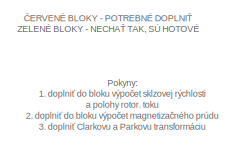
[diagram: root canvas - part 1/4, top left region]
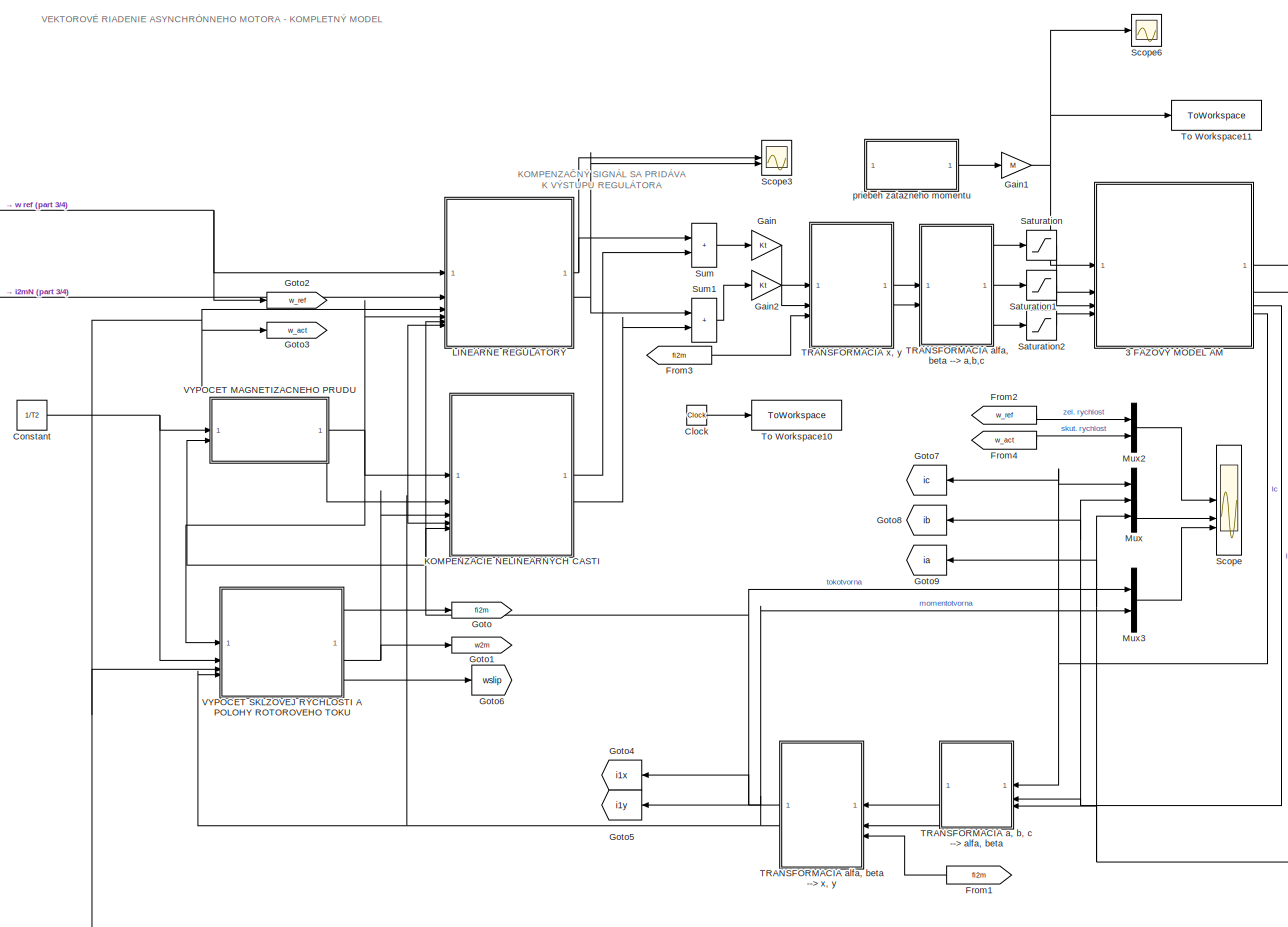
[diagram: root canvas - part 2/4, central region]
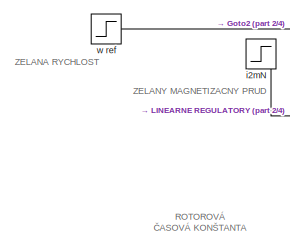
[diagram: root canvas - part 3/4, top left region]
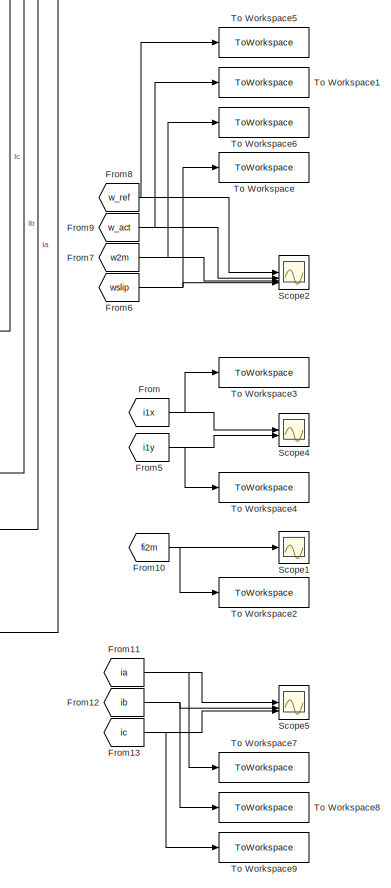
[diagram: root canvas - part 4/4, bottom right region]
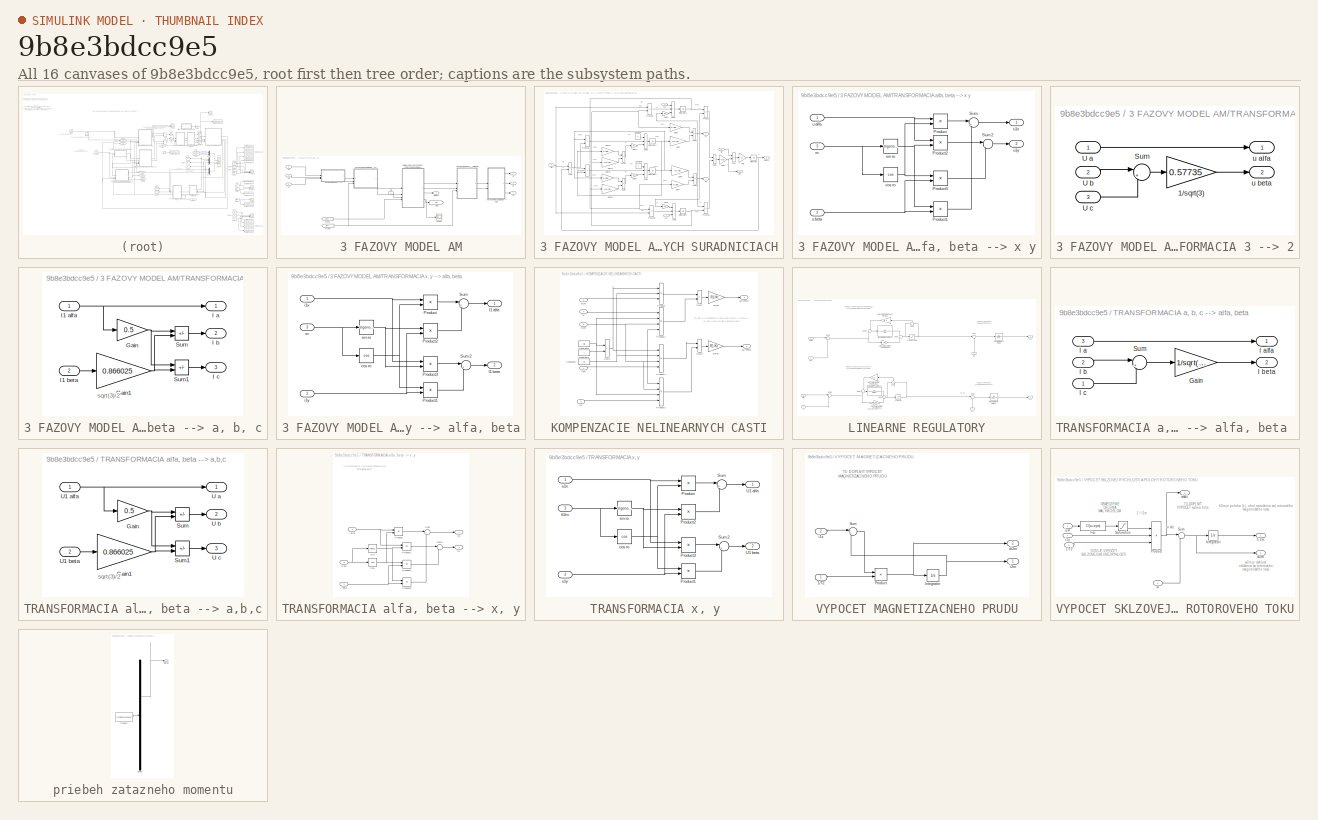
[diagram: thumbnail index - all 16 canvases of the model, root first then tree order]
MODEL slx_9b8e3bdcc9e5
KIND model
CONFIG AbsTol = auto
CONFIG EnableMultiTasking = on
CONFIG FixedStep = 0.0002
CONFIG MaxStep = auto
CONFIG MinStep = auto
CONFIG RelTol = 1e-5
CONFIG SampleTimeConstraint = Unconstrained
CONFIG SolverName = ode3
CONFIG StartTime = 0.0
CONFIG StopTime = 2
BLOCK [SubSystem] 3 FAZOVY MODEL AM
BLOCK [From] 3 FAZOVY MODEL AM/From1
  GotoTag = w2m
  TagVisibility = global
BLOCK [From] 3 FAZOVY MODEL AM/From3
  GotoTag = fi2m
  TagVisibility = global
BLOCK [Goto] 3 FAZOVY MODEL AM/Goto
  GotoTag = Mm
  TagVisibility = global
BLOCK [Outport] 3 FAZOVY MODEL AM/I a
  Port = 2
  VectorParamsAs1DForOutWhenUnconnected = off
BLOCK [Outport] 3 FAZOVY MODEL AM/I b
  Port = 3
  VectorParamsAs1DForOutWhenUnconnected = off
BLOCK [Outport] 3 FAZOVY MODEL AM/I c
  Port = 4
  VectorParamsAs1DForOutWhenUnconnected = off
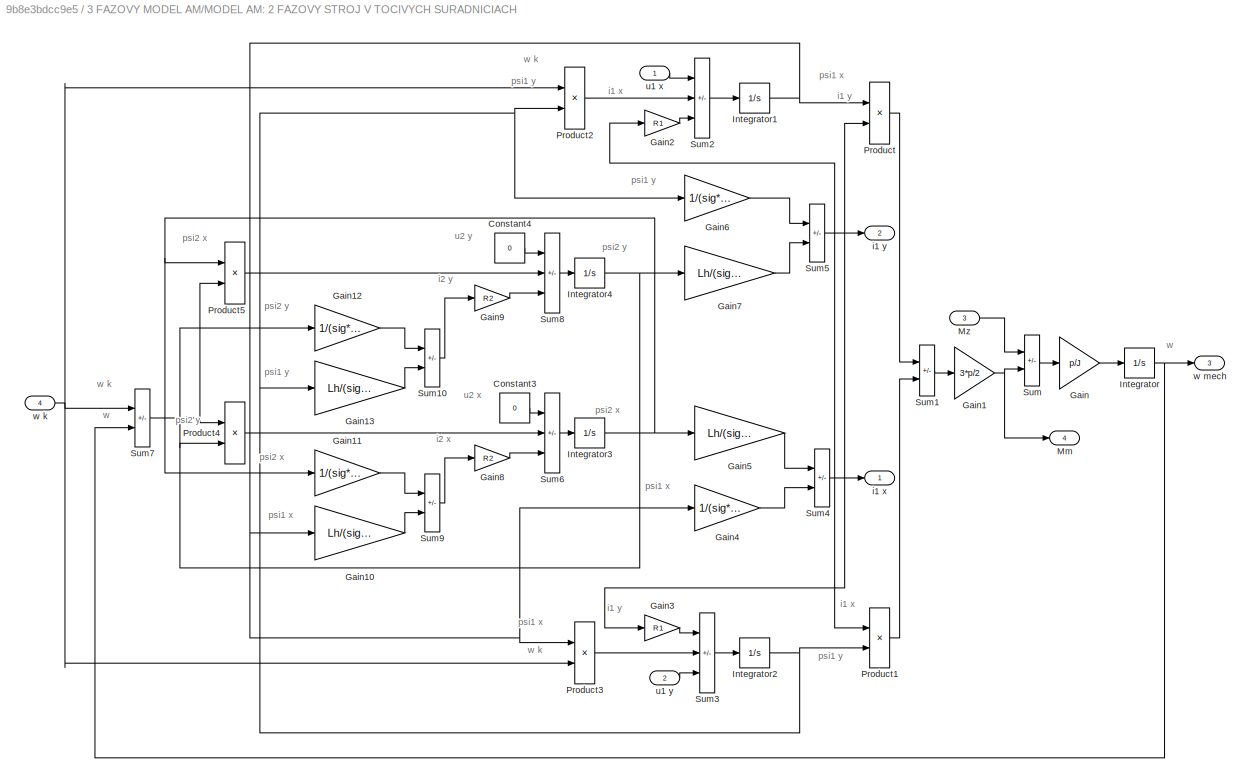
BLOCK [SubSystem] 3 FAZOVY MODEL AM/MODEL AM: 2 FAZOVY STROJ V TOCIVYCH SURADNICIACH
BLOCK [Constant] 3 FAZOVY MODEL AM/MODEL AM: 2 FAZOVY STROJ V TOCIVYCH SURADNICIACH/Constant3
  Value = 0
BLOCK [Constant] 3 FAZOVY MODEL AM/MODEL AM: 2 FAZOVY STROJ V TOCIVYCH SURADNICIACH/Constant4
  Value = 0
BLOCK [Gain] 3 FAZOVY MODEL AM/MODEL AM: 2 FAZOVY STROJ V TOCIVYCH SURADNICIACH/Gain
  Gain = p/J
BLOCK [Gain] 3 FAZOVY MODEL AM/MODEL AM: 2 FAZOVY STROJ V TOCIVYCH SURADNICIACH/Gain1
  Gain = 3*p/2
BLOCK [Gain] 3 FAZOVY MODEL AM/MODEL AM: 2 FAZOVY STROJ V TOCIVYCH SURADNICIACH/Gain10
  Gain = Lh/(sig*L1*L2)
BLOCK [Gain] 3 FAZOVY MODEL AM/MODEL AM: 2 FAZOVY STROJ V TOCIVYCH SURADNICIACH/Gain11
  Gain = 1/(sig*L2)
BLOCK [Gain] 3 FAZOVY MODEL AM/MODEL AM: 2 FAZOVY STROJ V TOCIVYCH SURADNICIACH/Gain12
  Gain = 1/(sig*L2)
BLOCK [Gain] 3 FAZOVY MODEL AM/MODEL AM: 2 FAZOVY STROJ V TOCIVYCH SURADNICIACH/Gain13
  Gain = Lh/(sig*L1*L2)
BLOCK [Gain] 3 FAZOVY MODEL AM/MODEL AM: 2 FAZOVY STROJ V TOCIVYCH SURADNICIACH/Gain2
  Gain = R1
BLOCK [Gain] 3 FAZOVY MODEL AM/MODEL AM: 2 FAZOVY STROJ V TOCIVYCH SURADNICIACH/Gain3
  Gain = R1
BLOCK [Gain] 3 FAZOVY MODEL AM/MODEL AM: 2 FAZOVY STROJ V TOCIVYCH SURADNICIACH/Gain4
  Gain = 1/(sig*L1)
BLOCK [Gain] 3 FAZOVY MODEL AM/MODEL AM: 2 FAZOVY STROJ V TOCIVYCH SURADNICIACH/Gain5
  Gain = Lh/(sig*L1*L2)
BLOCK [Gain] 3 FAZOVY MODEL AM/MODEL AM: 2 FAZOVY STROJ V TOCIVYCH SURADNICIACH/Gain6
  Gain = 1/(sig*L1)
BLOCK [Gain] 3 FAZOVY MODEL AM/MODEL AM: 2 FAZOVY STROJ V TOCIVYCH SURADNICIACH/Gain7
  Gain = Lh/(sig*L1*L2)
BLOCK [Gain] 3 FAZOVY MODEL AM/MODEL AM: 2 FAZOVY STROJ V TOCIVYCH SURADNICIACH/Gain8
  Gain = R2
BLOCK [Gain] 3 FAZOVY MODEL AM/MODEL AM: 2 FAZOVY STROJ V TOCIVYCH SURADNICIACH/Gain9
  Gain = R2
BLOCK [Integrator] 3 FAZOVY MODEL AM/MODEL AM: 2 FAZOVY STROJ V TOCIVYCH SURADNICIACH/Integrator
BLOCK [Integrator] 3 FAZOVY MODEL AM/MODEL AM: 2 FAZOVY STROJ V TOCIVYCH SURADNICIACH/Integrator1
BLOCK [Integrator] 3 FAZOVY MODEL AM/MODEL AM: 2 FAZOVY STROJ V TOCIVYCH SURADNICIACH/Integrator2
BLOCK [Integrator] 3 FAZOVY MODEL AM/MODEL AM: 2 FAZOVY STROJ V TOCIVYCH SURADNICIACH/Integrator3
BLOCK [Integrator] 3 FAZOVY MODEL AM/MODEL AM: 2 FAZOVY STROJ V TOCIVYCH SURADNICIACH/Integrator4
BLOCK [Outport] 3 FAZOVY MODEL AM/MODEL AM: 2 FAZOVY STROJ V TOCIVYCH SURADNICIACH/Mm
  Port = 4
  VectorParamsAs1DForOutWhenUnconnected = off
BLOCK [Inport] 3 FAZOVY MODEL AM/MODEL AM: 2 FAZOVY STROJ V TOCIVYCH SURADNICIACH/Mz
  Port = 3
BLOCK [Product] 3 FAZOVY MODEL AM/MODEL AM: 2 FAZOVY STROJ V TOCIVYCH SURADNICIACH/Product
  RndMeth = Zero
BLOCK [Product] 3 FAZOVY MODEL AM/MODEL AM: 2 FAZOVY STROJ V TOCIVYCH SURADNICIACH/Product1
  RndMeth = Zero
BLOCK [Product] 3 FAZOVY MODEL AM/MODEL AM: 2 FAZOVY STROJ V TOCIVYCH SURADNICIACH/Product2
  RndMeth = Zero
BLOCK [Product] 3 FAZOVY MODEL AM/MODEL AM: 2 FAZOVY STROJ V TOCIVYCH SURADNICIACH/Product3
  RndMeth = Zero
BLOCK [Product] 3 FAZOVY MODEL AM/MODEL AM: 2 FAZOVY STROJ V TOCIVYCH SURADNICIACH/Product4
  RndMeth = Zero
BLOCK [Product] 3 FAZOVY MODEL AM/MODEL AM: 2 FAZOVY STROJ V TOCIVYCH SURADNICIACH/Product5
  RndMeth = Zero
BLOCK [Sum] 3 FAZOVY MODEL AM/MODEL AM: 2 FAZOVY STROJ V TOCIVYCH SURADNICIACH/Sum
  IconShape = rectangular
  Inputs = -+
BLOCK [Sum] 3 FAZOVY MODEL AM/MODEL AM: 2 FAZOVY STROJ V TOCIVYCH SURADNICIACH/Sum1
  IconShape = rectangular
  Inputs = +-
BLOCK [Sum] 3 FAZOVY MODEL AM/MODEL AM: 2 FAZOVY STROJ V TOCIVYCH SURADNICIACH/Sum10
  IconShape = rectangular
  Inputs = +-
BLOCK [Sum] 3 FAZOVY MODEL AM/MODEL AM: 2 FAZOVY STROJ V TOCIVYCH SURADNICIACH/Sum2
  IconShape = rectangular
  Inputs = ++-
BLOCK [Sum] 3 FAZOVY MODEL AM/MODEL AM: 2 FAZOVY STROJ V TOCIVYCH SURADNICIACH/Sum3
  IconShape = rectangular
  Inputs = --+
BLOCK [Sum] 3 FAZOVY MODEL AM/MODEL AM: 2 FAZOVY STROJ V TOCIVYCH SURADNICIACH/Sum4
  IconShape = rectangular
  Inputs = -+
BLOCK [Sum] 3 FAZOVY MODEL AM/MODEL AM: 2 FAZOVY STROJ V TOCIVYCH SURADNICIACH/Sum5
  IconShape = rectangular
  Inputs = +-
BLOCK [Sum] 3 FAZOVY MODEL AM/MODEL AM: 2 FAZOVY STROJ V TOCIVYCH SURADNICIACH/Sum6
  IconShape = rectangular
  Inputs = ++-
BLOCK [Sum] 3 FAZOVY MODEL AM/MODEL AM: 2 FAZOVY STROJ V TOCIVYCH SURADNICIACH/Sum7
  IconShape = rectangular
  Inputs = +-
BLOCK [Sum] 3 FAZOVY MODEL AM/MODEL AM: 2 FAZOVY STROJ V TOCIVYCH SURADNICIACH/Sum8
  IconShape = rectangular
  Inputs = +--
BLOCK [Sum] 3 FAZOVY MODEL AM/MODEL AM: 2 FAZOVY STROJ V TOCIVYCH SURADNICIACH/Sum9
  IconShape = rectangular
  Inputs = +-
BLOCK [Outport] 3 FAZOVY MODEL AM/MODEL AM: 2 FAZOVY STROJ V TOCIVYCH SURADNICIACH/i1 x
  VectorParamsAs1DForOutWhenUnconnected = off
BLOCK [Outport] 3 FAZOVY MODEL AM/MODEL AM: 2 FAZOVY STROJ V TOCIVYCH SURADNICIACH/i1 y
  Port = 2
  VectorParamsAs1DForOutWhenUnconnected = off
BLOCK [Inport] 3 FAZOVY MODEL AM/MODEL AM: 2 FAZOVY STROJ V TOCIVYCH SURADNICIACH/u1 x
BLOCK [Inport] 3 FAZOVY MODEL AM/MODEL AM: 2 FAZOVY STROJ V TOCIVYCH SURADNICIACH/u1 y
  Port = 2
BLOCK [Inport] 3 FAZOVY MODEL AM/MODEL AM: 2 FAZOVY STROJ V TOCIVYCH SURADNICIACH/w k
  Port = 4
BLOCK [Outport] 3 FAZOVY MODEL AM/MODEL AM: 2 FAZOVY STROJ V TOCIVYCH SURADNICIACH/w mech
  Port = 3
  VectorParamsAs1DForOutWhenUnconnected = off
BLOCK [Inport] 3 FAZOVY MODEL AM/Mz
BLOCK [Scope] 3 FAZOVY MODEL AM/Scope
  ActiveDisplayYMaximum = 3.6440018137289671
  ActiveDisplayYMinimum = -2.9719517266428888
  DataLoggingVariableName = ScopeData2
  Floating = off
  GraphicalSettings = {"Style":{"BackgroundColor":[0.12941176470588237,0.12941176470588237,0.12941176470588237],"AxesColor":[0.07058823529411765,0.07058823529411765,0.07058823529411765],"LabelsColor":[0.8509803921568627,0.8509803921568627,0.8509803921568627],"PreserveColors":false,"Visible":[true],"LineStyle":["-"],"LineWidth":[1.5],"BarWidth":[0.9],"LineColor":["auto"],"LineFaceAlpha":[1],"LineEdgeAlpha":[1],"Marker":...<+1990ch>
  MultipleDisplayCache = [{"MaxYLimMag":3.6440018137289671,"MaxYLimReal":3.6440018137289671,"MinYLimMag":0,"MinYLimReal":-2.9719517266428888,"PlotAsMagnitudePhase":false,"ShowGrid":true,"ShowLegend":false,"Title":"%<SignalLabel>","YLabel":""}]
  NumInputPorts = 1
  ScopeFrameLocation = window
  WasSavedAsWebScope = on
  WindowPosition = [1000.000000,510.000000,560.000000,420.000000,]
BLOCK [SubSystem] 3 FAZOVY MODEL AM/TRANSFORMACIA 3 --> 2
BLOCK [Gain] 3 FAZOVY MODEL AM/TRANSFORMACIA 3 --> 2/1//sqrt(3)
  Gain = 0.57735
BLOCK [Sum] 3 FAZOVY MODEL AM/TRANSFORMACIA 3 --> 2/Sum
  Inputs = |+-
BLOCK [Inport] 3 FAZOVY MODEL AM/TRANSFORMACIA 3 --> 2/U a
BLOCK [Inport] 3 FAZOVY MODEL AM/TRANSFORMACIA 3 --> 2/U b
  Port = 2
BLOCK [Inport] 3 FAZOVY MODEL AM/TRANSFORMACIA 3 --> 2/U c
  Port = 3
BLOCK [Outport] 3 FAZOVY MODEL AM/TRANSFORMACIA 3 --> 2/u alfa
  VectorParamsAs1DForOutWhenUnconnected = off
BLOCK [Outport] 3 FAZOVY MODEL AM/TRANSFORMACIA 3 --> 2/u beta
  Port = 2
  VectorParamsAs1DForOutWhenUnconnected = off
BLOCK [SubSystem] 3 FAZOVY MODEL AM/TRANSFORMACIA alfa, beta --> a, b, c
BLOCK [Gain] 3 FAZOVY MODEL AM/TRANSFORMACIA alfa, beta --> a, b, c/Gain
  Gain = 0.5
BLOCK [Gain] 3 FAZOVY MODEL AM/TRANSFORMACIA alfa, beta --> a, b, c/Gain1
  Gain = 0.866025
BLOCK [Outport] 3 FAZOVY MODEL AM/TRANSFORMACIA alfa, beta --> a, b, c/I a
  VectorParamsAs1DForOutWhenUnconnected = off
BLOCK [Outport] 3 FAZOVY MODEL AM/TRANSFORMACIA alfa, beta --> a, b, c/I b
  Port = 2
  VectorParamsAs1DForOutWhenUnconnected = off
BLOCK [Outport] 3 FAZOVY MODEL AM/TRANSFORMACIA alfa, beta --> a, b, c/I c
  Port = 3
  VectorParamsAs1DForOutWhenUnconnected = off
BLOCK [Inport] 3 FAZOVY MODEL AM/TRANSFORMACIA alfa, beta --> a, b, c/I1 alfa
BLOCK [Inport] 3 FAZOVY MODEL AM/TRANSFORMACIA alfa, beta --> a, b, c/I1 beta
  Port = 2
BLOCK [Sum] 3 FAZOVY MODEL AM/TRANSFORMACIA alfa, beta --> a, b, c/Sum
  IconShape = rectangular
  Inputs = -+
BLOCK [Sum] 3 FAZOVY MODEL AM/TRANSFORMACIA alfa, beta --> a, b, c/Sum1
  IconShape = rectangular
  Inputs = --
BLOCK [SubSystem] 3 FAZOVY MODEL AM/TRANSFORMACIA alfa, beta --> x y
BLOCK [Product] 3 FAZOVY MODEL AM/TRANSFORMACIA alfa, beta --> x y/Product
  RndMeth = Zero
BLOCK [Product] 3 FAZOVY MODEL AM/TRANSFORMACIA alfa, beta --> x y/Product1
  RndMeth = Zero
BLOCK [Product] 3 FAZOVY MODEL AM/TRANSFORMACIA alfa, beta --> x y/Product2
  RndMeth = Zero
BLOCK [Product] 3 FAZOVY MODEL AM/TRANSFORMACIA alfa, beta --> x y/Product3
  RndMeth = Zero
BLOCK [Sum] 3 FAZOVY MODEL AM/TRANSFORMACIA alfa, beta --> x y/Sum
  Inputs = |++
BLOCK [Sum] 3 FAZOVY MODEL AM/TRANSFORMACIA alfa, beta --> x y/Sum2
  Inputs = |-+
BLOCK [Trigonometry] 3 FAZOVY MODEL AM/TRANSFORMACIA alfa, beta --> x y/cos ro
  Operator = cos
BLOCK [Inport] 3 FAZOVY MODEL AM/TRANSFORMACIA alfa, beta --> x y/ro
  Port = 3
BLOCK [Trigonometry] 3 FAZOVY MODEL AM/TRANSFORMACIA alfa, beta --> x y/sin ro
BLOCK [Inport] 3 FAZOVY MODEL AM/TRANSFORMACIA alfa, beta --> x y/u alfa
BLOCK [Inport] 3 FAZOVY MODEL AM/TRANSFORMACIA alfa, beta --> x y/u beta
  Port = 2
BLOCK [Outport] 3 FAZOVY MODEL AM/TRANSFORMACIA alfa, beta --> x y/u1x
  VectorParamsAs1DForOutWhenUnconnected = off
BLOCK [Outport] 3 FAZOVY MODEL AM/TRANSFORMACIA alfa, beta --> x y/u1y
  Port = 2
  VectorParamsAs1DForOutWhenUnconnected = off
BLOCK [SubSystem] 3 FAZOVY MODEL AM/TRANSFORMACIA x, y --> alfa, beta
BLOCK [Outport] 3 FAZOVY MODEL AM/TRANSFORMACIA x, y --> alfa, beta/I1 alfa
  VectorParamsAs1DForOutWhenUnconnected = off
BLOCK [Outport] 3 FAZOVY MODEL AM/TRANSFORMACIA x, y --> alfa, beta/I1 beta
  Port = 2
  VectorParamsAs1DForOutWhenUnconnected = off
BLOCK [Product] 3 FAZOVY MODEL AM/TRANSFORMACIA x, y --> alfa, beta/Product
  RndMeth = Zero
BLOCK [Product] 3 FAZOVY MODEL AM/TRANSFORMACIA x, y --> alfa, beta/Product1
  RndMeth = Zero
BLOCK [Product] 3 FAZOVY MODEL AM/TRANSFORMACIA x, y --> alfa, beta/Product2
  RndMeth = Zero
BLOCK [Product] 3 FAZOVY MODEL AM/TRANSFORMACIA x, y --> alfa, beta/Product3
  RndMeth = Zero
BLOCK [Sum] 3 FAZOVY MODEL AM/TRANSFORMACIA x, y --> alfa, beta/Sum
  Inputs = |+-
BLOCK [Sum] 3 FAZOVY MODEL AM/TRANSFORMACIA x, y --> alfa, beta/Sum2
  Inputs = |++
BLOCK [Trigonometry] 3 FAZOVY MODEL AM/TRANSFORMACIA x, y --> alfa, beta/cos ro
  Operator = cos
BLOCK [Inport] 3 FAZOVY MODEL AM/TRANSFORMACIA x, y --> alfa, beta/i1x
BLOCK [Inport] 3 FAZOVY MODEL AM/TRANSFORMACIA x, y --> alfa, beta/i1y
  Port = 2
BLOCK [Inport] 3 FAZOVY MODEL AM/TRANSFORMACIA x, y --> alfa, beta/ro 
  Port = 3
BLOCK [Trigonometry] 3 FAZOVY MODEL AM/TRANSFORMACIA x, y --> alfa, beta/sin ro
BLOCK [Inport] 3 FAZOVY MODEL AM/Ua
  Port = 2
BLOCK [Inport] 3 FAZOVY MODEL AM/Ub
  Port = 3
BLOCK [Inport] 3 FAZOVY MODEL AM/Uc
  Port = 4
BLOCK [Outport] 3 FAZOVY MODEL AM/w mech
  VectorParamsAs1DForOutWhenUnconnected = off
BLOCK [Clock] Clock
BLOCK [Constant] Constant
  Value = 1/T2
BLOCK [From] From
  GotoTag = i1x
BLOCK [From] From1
  GotoTag = fi2m
  NameLocation = top
  TagVisibility = global
BLOCK [From] From10
  GotoTag = fi2m
  TagVisibility = global
BLOCK [From] From11
  GotoTag = ia
BLOCK [From] From12
  GotoTag = ib
BLOCK [From] From13
  GotoTag = ic
BLOCK [From] From2
  GotoTag = w_ref
  TagVisibility = global
BLOCK [From] From3
  GotoTag = fi2m
  TagVisibility = global
BLOCK [From] From4
  GotoTag = w_act
  TagVisibility = global
BLOCK [From] From5
  GotoTag = i1y
BLOCK [From] From6
  GotoTag = wslip
BLOCK [From] From7
  GotoTag = w2m
  TagVisibility = global
BLOCK [From] From8
  GotoTag = w_ref
  TagVisibility = global
BLOCK [From] From9
  GotoTag = w_act
  TagVisibility = global
BLOCK [Gain] Gain
  Gain = Kt
BLOCK [Gain] Gain1
  Gain = M
BLOCK [Gain] Gain2
  Gain = Kt
BLOCK [Goto] Goto
  GotoTag = fi2m
  TagVisibility = global
BLOCK [Goto] Goto1
  GotoTag = w2m
  TagVisibility = global
BLOCK [Goto] Goto2
  GotoTag = w_ref
  TagVisibility = global
BLOCK [Goto] Goto3
  GotoTag = w_act
  TagVisibility = global
BLOCK [Goto] Goto4
  GotoTag = i1x
  NameLocation = top
BLOCK [Goto] Goto5
  GotoTag = i1y
  NameLocation = top
BLOCK [Goto] Goto6
  GotoTag = wslip
BLOCK [Goto] Goto7
  GotoTag = ic
  NameLocation = top
BLOCK [Goto] Goto8
  GotoTag = ib
  NameLocation = top
BLOCK [Goto] Goto9
  GotoTag = ia
  NameLocation = top
BLOCK [SubSystem] KOMPENZACIE NELINEARNYCH CASTI
BLOCK [Constant] KOMPENZACIE NELINEARNYCH CASTI/Constant7
  Value = T1
BLOCK [Constant] KOMPENZACIE NELINEARNYCH CASTI/Constant8
  Value = sig
BLOCK [Constant] KOMPENZACIE NELINEARNYCH CASTI/Constant9
BLOCK [Gain] KOMPENZACIE NELINEARNYCH CASTI/Gain1
  Gain = R1/Kt
BLOCK [Gain] KOMPENZACIE NELINEARNYCH CASTI/Gain2
  Gain = R1/Kt
BLOCK [Product] KOMPENZACIE NELINEARNYCH CASTI/Product
  Inputs = 3
  RndMeth = Zero
BLOCK [Product] KOMPENZACIE NELINEARNYCH CASTI/Product1
  Inputs = 4
  RndMeth = Zero
BLOCK [Product] KOMPENZACIE NELINEARNYCH CASTI/Product2
  Inputs = 4
  RndMeth = Zero
BLOCK [Product] KOMPENZACIE NELINEARNYCH CASTI/Product3
  Inputs = 4
  RndMeth = Zero
BLOCK [Sum] KOMPENZACIE NELINEARNYCH CASTI/Sum1
  IconShape = rectangular
  Inputs = -+
BLOCK [Sum] KOMPENZACIE NELINEARNYCH CASTI/Sum2
  IconShape = rectangular
BLOCK [Sum] KOMPENZACIE NELINEARNYCH CASTI/Sum7
  IconShape = rectangular
  Inputs = +-
BLOCK [Inport] KOMPENZACIE NELINEARNYCH CASTI/di2m
  Port = 2
BLOCK [Inport] KOMPENZACIE NELINEARNYCH CASTI/i1x
  Port = 5
BLOCK [Inport] KOMPENZACIE NELINEARNYCH CASTI/i1y
  Port = 4
BLOCK [Inport] KOMPENZACIE NELINEARNYCH CASTI/i2m
BLOCK [Outport] KOMPENZACIE NELINEARNYCH CASTI/u1x komp
  VectorParamsAs1DForOutWhenUnconnected = off
BLOCK [Outport] KOMPENZACIE NELINEARNYCH CASTI/u1y komp
  Port = 2
  VectorParamsAs1DForOutWhenUnconnected = off
BLOCK [Inport] KOMPENZACIE NELINEARNYCH CASTI/w2m
  Port = 3
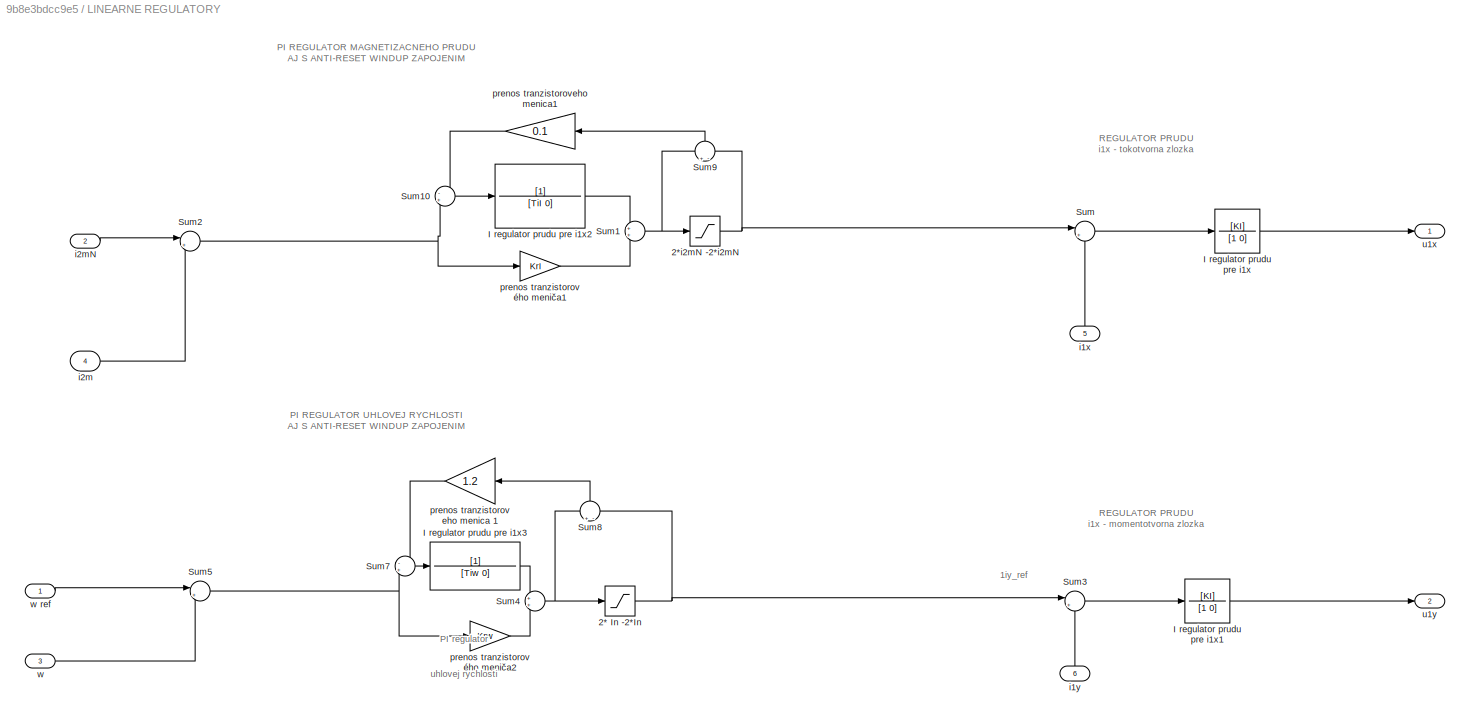
BLOCK [SubSystem] LINEARNE REGULATORY
BLOCK [Saturate] LINEARNE REGULATORY/2* In -2*In
  LowerLimit = -I*1.5
  UpperLimit = I*1.5
BLOCK [Saturate] LINEARNE REGULATORY/2*i2mN -2*i2mN
  LowerLimit = -1.5*i2mN
  UpperLimit = 1.5*i2mN
BLOCK [TransferFcn] LINEARNE REGULATORY/I regulator prudu pre i1x
  Denominator = [1 0]
  Numerator = [KI]
BLOCK [TransferFcn] LINEARNE REGULATORY/I regulator prudu pre i1x1
  Denominator = [1 0]
  Numerator = [KI]
BLOCK [TransferFcn] LINEARNE REGULATORY/I regulator prudu pre i1x2
  Denominator = [TiI 0]
BLOCK [TransferFcn] LINEARNE REGULATORY/I regulator prudu pre i1x3
  Denominator = [Tiw 0]
BLOCK [Sum] LINEARNE REGULATORY/Sum
  Inputs = |+-
BLOCK [Sum] LINEARNE REGULATORY/Sum1
BLOCK [Sum] LINEARNE REGULATORY/Sum10
  Inputs = -+
BLOCK [Sum] LINEARNE REGULATORY/Sum2
  Inputs = |+-
BLOCK [Sum] LINEARNE REGULATORY/Sum3
  Inputs = |+-
BLOCK [Sum] LINEARNE REGULATORY/Sum4
BLOCK [Sum] LINEARNE REGULATORY/Sum5
  Inputs = |+-
BLOCK [Sum] LINEARNE REGULATORY/Sum7
  Inputs = -+
BLOCK [Sum] LINEARNE REGULATORY/Sum8
  Inputs = +-
  NameLocation = right
BLOCK [Sum] LINEARNE REGULATORY/Sum9
  Inputs = +-
  NameLocation = right
BLOCK [Inport] LINEARNE REGULATORY/i1x
  NameLocation = right
  Port = 5
BLOCK [Inport] LINEARNE REGULATORY/i1y
  NameLocation = right
  Port = 6
BLOCK [Inport] LINEARNE REGULATORY/i2m
  Port = 4
BLOCK [Inport] LINEARNE REGULATORY/i2mN
  Port = 2
BLOCK [Gain] LINEARNE REGULATORY/prenos tranzistoroveho menica 1
  Gain = 1.2
  NameLocation = top
BLOCK [Gain] LINEARNE REGULATORY/prenos tranzistoroveho menica1
  Gain = 0.1
  NameLocation = top
BLOCK [Gain] LINEARNE REGULATORY/prenos tranzistorového meniča1
  Gain = KrI
BLOCK [Gain] LINEARNE REGULATORY/prenos tranzistorového meniča2
  Gain = Krw
BLOCK [Outport] LINEARNE REGULATORY/u1x
  VectorParamsAs1DForOutWhenUnconnected = off
BLOCK [Outport] LINEARNE REGULATORY/u1y
  Port = 2
  VectorParamsAs1DForOutWhenUnconnected = off
BLOCK [Inport] LINEARNE REGULATORY/w
  Port = 3
BLOCK [Inport] LINEARNE REGULATORY/w ref
BLOCK [Mux] Mux
  DisplayOption = bar
  Inputs = 3
BLOCK [Mux] Mux2
  DisplayOption = bar
  Inputs = 2
BLOCK [Mux] Mux3
  DisplayOption = bar
  Inputs = 2
BLOCK [Saturate] Saturation
  LowerLimit = -Ulim
  UpperLimit = Ulim
BLOCK [Saturate] Saturation1
  LowerLimit = -Ulim
  UpperLimit = Ulim
BLOCK [Saturate] Saturation2
  LowerLimit = -Ulim
  UpperLimit = Ulim
BLOCK [Scope] Scope
  ActiveDisplayYMaximum = 125.24707017611922
  ActiveDisplayYMinimum = -13.916341130679911
  DataLoggingVariableName = ScopeData1
  Floating = off
  GraphicalSettings = {"Style":{"BackgroundColor":[0.12941176470588237,0.12941176470588237,0.12941176470588237],"AxesColor":[0.07058823529411765,0.07058823529411765,0.07058823529411765],"LabelsColor":[0.8509803921568627,0.8509803921568627,0.8509803921568627],"PreserveColors":false,"Visible":[true,true,true,true,true,true,true],"LineStyle":["-","-","-","-","-","-","-"],"LineWidth":[4,3,3,3,3,4,3],"BarWidth":[0.9,0.9,0.9...<+3315ch>
  LayoutDimensionsString = [3 1]
  MultipleDisplayCache = [{"MaxYLimMag":125.24707017611922,"MaxYLimReal":125.24707017611922,"MinYLimMag":0,"MinYLimReal":-13.916341130679911,"PlotAsMagnitudePhase":false,"ShowGrid":true,"ShowLegend":true,"Title":"%<SignalLabel>","YLabel":""},{"MaxYLimMag":4.82912143110036,"MaxYLimReal":4.7245859257180092,"MinYLimMag":0,"MinYLimReal":-4.82912143110036,"PlotAsMagnitudePhase":false,"ShowGrid":true,"ShowLegend":true,"Title":"...<+245ch>
  NumInputPorts = 3
  ScopeFrameLocation = window
  ShowLegend = on
  WasSavedAsWebScope = on
  WindowPosition = [166.000000,148.000000,1920.000000,963.000000,]
BLOCK [Scope] Scope1
  ActiveDisplayYMaximum = 1
  ActiveDisplayYMinimum = -1
  Floating = off
  GraphicalSettings = {"Style":{"BackgroundColor":[0.12941176470588237,0.12941176470588237,0.12941176470588237],"AxesColor":[0.07058823529411765,0.07058823529411765,0.07058823529411765],"LabelsColor":[0.8509803921568627,0.8509803921568627,0.8509803921568627],"PreserveColors":false,"Visible":[true],"LineStyle":["-"],"LineWidth":[1.5],"BarWidth":[0.9],"LineColor":["auto"],"LineFaceAlpha":[1],"LineEdgeAlpha":[1],"Marker":...<+1994ch>
  MultipleDisplayCache = [{"MaxYLimMag":1,"MaxYLimReal":1,"MinYLimMag":0,"MinYLimReal":-1,"PlotAsMagnitudePhase":false,"ShowGrid":true,"ShowLegend":false,"Title":"%<SignalLabel>","YLabel":""}]
  NumInputPorts = 1
  ScopeFrameLocation = window
  WasSavedAsWebScope = on
  WindowPosition = [1000.000000,510.000000,560.000000,420.000000,]
BLOCK [Scope] Scope2
  ActiveDisplayYMaximum = 1
  ActiveDisplayYMinimum = -1
  DataLoggingVariableName = ScopeData3
  Floating = off
  GraphicalSettings = {"Style":{"BackgroundColor":[0.12941176470588237,0.12941176470588237,0.12941176470588237],"AxesColor":[0.07058823529411765,0.07058823529411765,0.07058823529411765],"LabelsColor":[0.8509803921568627,0.8509803921568627,0.8509803921568627],"PreserveColors":false,"Visible":[true,true,true,true],"LineStyle":["-","-","-","-"],"LineWidth":[1.5,1.5,1.5,1.5],"BarWidth":[0.9,0.9,0.9,0.9],"LineColor":["auto"...<+2443ch>
  MultipleDisplayCache = [{"MaxYLimMag":1,"MaxYLimReal":1,"MinYLimMag":0,"MinYLimReal":-1,"PlotAsMagnitudePhase":false,"ShowGrid":true,"ShowLegend":true,"Title":"%<SignalLabel>","YLabel":""}]
  NumInputPorts = 4
  ScopeFrameLocation = window
  ShowLegend = on
  WasSavedAsWebScope = on
  WindowPosition = [316.000000,442.000000,1056.000000,752.000000,]
BLOCK [Scope] Scope3
  ActiveDisplayYMaximum = 0.14857931072706687
  ActiveDisplayYMinimum = -0.016508812303007426
  DataLoggingVariableName = ScopeData4
  Floating = off
  GraphicalSettings = {"Style":{"BackgroundColor":[0.12941176470588237,0.12941176470588237,0.12941176470588237],"AxesColor":[0.07058823529411765,0.07058823529411765,0.07058823529411765],"LabelsColor":[0.8509803921568627,0.8509803921568627,0.8509803921568627],"PreserveColors":false,"Visible":[true,true],"LineStyle":["-","-"],"LineWidth":[1.5,1.5],"BarWidth":[0.9,0.9],"LineColor":["auto","auto"],"LineFaceAlpha":[1,1],"Li...<+2487ch>
  LayoutDimensionsString = [2,1]
  MultipleDisplayCache = [{"MaxYLimMag":0.14857931072706687,"MaxYLimReal":0.14857931072706687,"MinYLimMag":0,"MinYLimReal":-0.016508812303007426,"PlotAsMagnitudePhase":false,"ShowGrid":true,"ShowLegend":true,"Title":"%<SignalLabel>","YLabel":""},{"MaxYLimMag":0.85767070301231008,"MaxYLimReal":0.85767070301231008,"MinYLimMag":0,"MinYLimReal":-0.77109827092489058,"PlotAsMagnitudePhase":false,"ShowGrid":true,"ShowLegend":tru...<+40ch>
  NumInputPorts = 2
  ScopeFrameLocation = window
  ShowLegend = on
  WasSavedAsWebScope = on
  WindowPosition = [327.000000,675.000000,560.000000,420.000000,]
BLOCK [Scope] Scope4
  ActiveDisplayYMaximum = 1
  ActiveDisplayYMinimum = -1
  DataLoggingVariableName = ScopeData5
  Floating = off
  GraphicalSettings = {"Style":{"BackgroundColor":[0.12941176470588237,0.12941176470588237,0.12941176470588237],"AxesColor":[0.07058823529411765,0.07058823529411765,0.07058823529411765],"LabelsColor":[0.8509803921568627,0.8509803921568627,0.8509803921568627],"PreserveColors":false,"Visible":[true,true],"LineStyle":["-","-"],"LineWidth":[1.5,1.5],"BarWidth":[0.9,0.9],"LineColor":["auto","auto"],"LineFaceAlpha":[1,1],"Li...<+2302ch>
  LayoutDimensionsString = [2,1]
  MultipleDisplayCache = [{"MaxYLimMag":1,"MaxYLimReal":1,"MinYLimMag":0,"MinYLimReal":-1,"PlotAsMagnitudePhase":false,"ShowGrid":true,"ShowLegend":false,"Title":"%<SignalLabel>","YLabel":""},{"MaxYLimMag":1,"MaxYLimReal":1,"MinYLimMag":0,"MinYLimReal":-1,"PlotAsMagnitudePhase":false,"ShowGrid":true,"ShowLegend":false,"Title":"%<SignalLabel>","YLabel":""}]
  NumInputPorts = 2
  ScopeFrameLocation = window
  WasSavedAsWebScope = on
  WindowPosition = [1000.000000,510.000000,560.000000,420.000000,]
BLOCK [Scope] Scope5
  ActiveDisplayYMaximum = 1
  ActiveDisplayYMinimum = -1
  DataLoggingVariableName = ScopeData6
  Floating = off
  GraphicalSettings = {"Style":{"BackgroundColor":[0.12941176470588237,0.12941176470588237,0.12941176470588237],"AxesColor":[0.07058823529411765,0.07058823529411765,0.07058823529411765],"LabelsColor":[0.8509803921568627,0.8509803921568627,0.8509803921568627],"PreserveColors":false,"Visible":[true,true,true],"LineStyle":["-","-","-"],"LineWidth":[1.5,1.5,1.5],"BarWidth":[0.9,0.9,0.9],"LineColor":["auto","auto","auto"],"...<+2113ch>
  MultipleDisplayCache = [{"MaxYLimMag":1,"MaxYLimReal":1,"MinYLimMag":0,"MinYLimReal":-1,"PlotAsMagnitudePhase":false,"ShowGrid":true,"ShowLegend":false,"Title":"%<SignalLabel>","YLabel":""}]
  NumInputPorts = 3
  ScopeFrameLocation = window
  WasSavedAsWebScope = on
  WindowPosition = [1000.000000,510.000000,560.000000,420.000000,]
BLOCK [Scope] Scope6
  ActiveDisplayYMaximum = 1
  ActiveDisplayYMinimum = -1
  DataLoggingVariableName = ScopeData7
  Floating = off
  GraphicalSettings = {"Style":{"BackgroundColor":[0.12941176470588237,0.12941176470588237,0.12941176470588237],"AxesColor":[0.07058823529411765,0.07058823529411765,0.07058823529411765],"LabelsColor":[0.8509803921568627,0.8509803921568627,0.8509803921568627],"PreserveColors":false,"Visible":[true],"LineStyle":["-"],"LineWidth":[1.5],"BarWidth":[0.9],"LineColor":["auto"],"LineFaceAlpha":[1],"LineEdgeAlpha":[1],"Marker":...<+1978ch>
  MultipleDisplayCache = [{"MaxYLimMag":1,"MaxYLimReal":1,"MinYLimMag":0,"MinYLimReal":-1,"PlotAsMagnitudePhase":false,"ShowGrid":true,"ShowLegend":false,"Title":"%<SignalLabel>","YLabel":""}]
  NumInputPorts = 1
  ScopeFrameLocation = window
  WasSavedAsWebScope = on
  WindowPosition = [1000.000000,510.000000,560.000000,420.000000,]
BLOCK [Sum] Sum
  IconShape = rectangular
BLOCK [Sum] Sum1
  IconShape = rectangular
BLOCK [SubSystem] TRANSFORMACIA a, b, c  --> alfa, beta 
BLOCK [Gain] TRANSFORMACIA a, b, c  --> alfa, beta /Gain
  Gain = 1/sqrt(3)
BLOCK [Inport] TRANSFORMACIA a, b, c  --> alfa, beta /I a
  Port = 3
BLOCK [Outport] TRANSFORMACIA a, b, c  --> alfa, beta /I alfa
  VectorParamsAs1DForOutWhenUnconnected = off
BLOCK [Inport] TRANSFORMACIA a, b, c  --> alfa, beta /I b
  Port = 2
BLOCK [Outport] TRANSFORMACIA a, b, c  --> alfa, beta /I beta
  Port = 2
  VectorParamsAs1DForOutWhenUnconnected = off
BLOCK [Inport] TRANSFORMACIA a, b, c  --> alfa, beta /I c
BLOCK [Sum] TRANSFORMACIA a, b, c  --> alfa, beta /Sum
  Inputs = |+-
BLOCK [SubSystem] TRANSFORMACIA alfa, beta --> a,b,c
BLOCK [Gain] TRANSFORMACIA alfa, beta --> a,b,c/Gain
  Gain = 0.5
BLOCK [Gain] TRANSFORMACIA alfa, beta --> a,b,c/Gain1
  Gain = 0.866025
BLOCK [Sum] TRANSFORMACIA alfa, beta --> a,b,c/Sum
  IconShape = rectangular
  Inputs = -+
BLOCK [Sum] TRANSFORMACIA alfa, beta --> a,b,c/Sum1
  IconShape = rectangular
  Inputs = --
BLOCK [Outport] TRANSFORMACIA alfa, beta --> a,b,c/U a
  VectorParamsAs1DForOutWhenUnconnected = off
BLOCK [Outport] TRANSFORMACIA alfa, beta --> a,b,c/U b
  Port = 2
  VectorParamsAs1DForOutWhenUnconnected = off
BLOCK [Outport] TRANSFORMACIA alfa, beta --> a,b,c/U c
  Port = 3
  VectorParamsAs1DForOutWhenUnconnected = off
BLOCK [Inport] TRANSFORMACIA alfa, beta --> a,b,c/U1 alfa
BLOCK [Inport] TRANSFORMACIA alfa, beta --> a,b,c/U1 beta
  Port = 2
BLOCK [SubSystem] TRANSFORMACIA alfa, beta --> x, y
BLOCK [Trigonometry] TRANSFORMACIA alfa, beta --> x, y/Cos
  Operator = cos
BLOCK [Inport] TRANSFORMACIA alfa, beta --> x, y/I alfa
BLOCK [Inport] TRANSFORMACIA alfa, beta --> x, y/I beta
  Port = 2
BLOCK [Product] TRANSFORMACIA alfa, beta --> x, y/Product
BLOCK [Product] TRANSFORMACIA alfa, beta --> x, y/Product1
BLOCK [Product] TRANSFORMACIA alfa, beta --> x, y/Product2
BLOCK [Product] TRANSFORMACIA alfa, beta --> x, y/Product3
BLOCK [Trigonometry] TRANSFORMACIA alfa, beta --> x, y/Sin
BLOCK [Sum] TRANSFORMACIA alfa, beta --> x, y/Sum
  Inputs = |++
BLOCK [Sum] TRANSFORMACIA alfa, beta --> x, y/Sum1
  Inputs = |-+
BLOCK [Inport] TRANSFORMACIA alfa, beta --> x, y/fi2m
  Port = 3
BLOCK [Outport] TRANSFORMACIA alfa, beta --> x, y/i1x
  VectorParamsAs1DForOutWhenUnconnected = off
BLOCK [Outport] TRANSFORMACIA alfa, beta --> x, y/i1y
  Port = 2
  VectorParamsAs1DForOutWhenUnconnected = off
BLOCK [SubSystem] TRANSFORMACIA x, y 
BLOCK [Product] TRANSFORMACIA x, y /Product
  RndMeth = Zero
BLOCK [Product] TRANSFORMACIA x, y /Product1
  RndMeth = Zero
BLOCK [Product] TRANSFORMACIA x, y /Product2
  RndMeth = Zero
BLOCK [Product] TRANSFORMACIA x, y /Product3
  RndMeth = Zero
BLOCK [Sum] TRANSFORMACIA x, y /Sum
  Inputs = |+-
BLOCK [Sum] TRANSFORMACIA x, y /Sum2
  Inputs = |++
BLOCK [Outport] TRANSFORMACIA x, y /U1 alfa
  VectorParamsAs1DForOutWhenUnconnected = off
BLOCK [Outport] TRANSFORMACIA x, y /U1 beta
  Port = 2
  VectorParamsAs1DForOutWhenUnconnected = off
BLOCK [Trigonometry] TRANSFORMACIA x, y /cos ro
  Operator = cos
BLOCK [Inport] TRANSFORMACIA x, y /fi2m 
  Port = 3
BLOCK [Trigonometry] TRANSFORMACIA x, y /sin ro
BLOCK [Inport] TRANSFORMACIA x, y /u1x
BLOCK [Inport] TRANSFORMACIA x, y /u1y
  Port = 2
BLOCK [ToWorkspace] To Workspace
  FixptAsFi = on
  MaxDataPoints = inf
  SampleTime = -1
  VariableName = wslip_FOC
BLOCK [ToWorkspace] To Workspace1
  FixptAsFi = on
  MaxDataPoints = inf
  SampleTime = -1
  VariableName = w_act_FOC
BLOCK [ToWorkspace] To Workspace10
  FixptAsFi = on
  MaxDataPoints = inf
  SampleTime = -1
  VariableName = Time_FOC
BLOCK [ToWorkspace] To Workspace11
  FixptAsFi = on
  MaxDataPoints = inf
  SampleTime = -1
  VariableName = Torque_FOC
BLOCK [ToWorkspace] To Workspace2
  FixptAsFi = on
  MaxDataPoints = inf
  SampleTime = -1
  VariableName = fi2m_FOC
BLOCK [ToWorkspace] To Workspace3
  FixptAsFi = on
  MaxDataPoints = inf
  SampleTime = -1
  VariableName = i1x_FOC
BLOCK [ToWorkspace] To Workspace4
  FixptAsFi = on
  MaxDataPoints = inf
  SampleTime = -1
  VariableName = i1y_FOC
BLOCK [ToWorkspace] To Workspace5
  FixptAsFi = on
  MaxDataPoints = inf
  SampleTime = -1
  VariableName = w_ref_FOC
BLOCK [ToWorkspace] To Workspace6
  FixptAsFi = on
  MaxDataPoints = inf
  SampleTime = -1
  VariableName = w2m_FOC
BLOCK [ToWorkspace] To Workspace7
  FixptAsFi = on
  MaxDataPoints = inf
  SampleTime = -1
  VariableName = ia_FOC
BLOCK [ToWorkspace] To Workspace8
  FixptAsFi = on
  MaxDataPoints = inf
  SampleTime = -1
  VariableName = ib_FOC
BLOCK [ToWorkspace] To Workspace9
  FixptAsFi = on
  MaxDataPoints = inf
  SampleTime = -1
  VariableName = ic_FOC
BLOCK [SubSystem] VYPOCET MAGNETIZACNEHO PRUDU
BLOCK [Inport] VYPOCET MAGNETIZACNEHO PRUDU/1//T2
BLOCK [Integrator] VYPOCET MAGNETIZACNEHO PRUDU/Integrator
BLOCK [Product] VYPOCET MAGNETIZACNEHO PRUDU/Product
BLOCK [Sum] VYPOCET MAGNETIZACNEHO PRUDU/Sum
  Inputs = |+-
BLOCK [Outport] VYPOCET MAGNETIZACNEHO PRUDU/di2m
  Port = 2
  VectorParamsAs1DForOutWhenUnconnected = off
BLOCK [Inport] VYPOCET MAGNETIZACNEHO PRUDU/i1x
  Port = 2
BLOCK [Outport] VYPOCET MAGNETIZACNEHO PRUDU/i2m
  VectorParamsAs1DForOutWhenUnconnected = off
BLOCK [SubSystem] VYPOCET SKLZOVEJ RYCHLOSTI A POLOHY ROTOROVEHO TOKU
BLOCK [Inport] VYPOCET SKLZOVEJ RYCHLOSTI A POLOHY ROTOROVEHO TOKU/1//T2
  Port = 2
BLOCK [Fcn] VYPOCET SKLZOVEJ RYCHLOSTI A POLOHY ROTOROVEHO TOKU/Fcn
  Expr = 1/(u+eps)
BLOCK [Integrator] VYPOCET SKLZOVEJ RYCHLOSTI A POLOHY ROTOROVEHO TOKU/Integrator
BLOCK [Product] VYPOCET SKLZOVEJ RYCHLOSTI A POLOHY ROTOROVEHO TOKU/Product
  Inputs = 3
  RndMeth = Zero
BLOCK [Saturate] VYPOCET SKLZOVEJ RYCHLOSTI A POLOHY ROTOROVEHO TOKU/Saturation
  LowerLimit = -300
  UpperLimit = 300
BLOCK [Sum] VYPOCET SKLZOVEJ RYCHLOSTI A POLOHY ROTOROVEHO TOKU/Sum
  Inputs = |++
BLOCK [Outport] VYPOCET SKLZOVEJ RYCHLOSTI A POLOHY ROTOROVEHO TOKU/fi 2m
  NameLocation = top
  VectorParamsAs1DForOutWhenUnconnected = off
BLOCK [Inport] VYPOCET SKLZOVEJ RYCHLOSTI A POLOHY ROTOROVEHO TOKU/i1y
  Port = 4
BLOCK [Inport] VYPOCET SKLZOVEJ RYCHLOSTI A POLOHY ROTOROVEHO TOKU/i2m
  NameLocation = top
BLOCK [Inport] VYPOCET SKLZOVEJ RYCHLOSTI A POLOHY ROTOROVEHO TOKU/w
  Port = 3
BLOCK [Outport] VYPOCET SKLZOVEJ RYCHLOSTI A POLOHY ROTOROVEHO TOKU/w2m
  NameLocation = top
  Port = 2
  VectorParamsAs1DForOutWhenUnconnected = off
BLOCK [Outport] VYPOCET SKLZOVEJ RYCHLOSTI A POLOHY ROTOROVEHO TOKU/wsklz
  Port = 3
BLOCK [Step] i2mN
  After = i2mN
  SampleTime = 0
  Time = 0
BLOCK [SubSystem] priebeh zatazneho momentu
  ClipboardFcn = sigbuilder_block('clipboard');
  CloseFcn = sigbuilder_block('close');
  ContinueFcn = sigbuilder_block('continue');
  CopyFcn = sigbuilder_block('copy');
  DeleteFcn = sigbuilder_block('delete');
  LoadFcn = sigbuilder_block('load');
  MaskHideContents = on
  ModelCloseFcn = sigbuilder_block('modelClose');
  NameChangeFcn = sigbuilder_block('namechange');
  OpenFcn = sigbuilder_block('open',[436.5 297.75 1045.5 630 ]);
  PauseFcn = sigbuilder_block('pause');
  PreSaveFcn = sigbuilder_block('preSave');
  StartFcn = sigbuilder_block('start');
  StopFcn = sigbuilder_block('stop');
  Tag = STV Subsys
BLOCK [Demux] priebeh zatazneho momentu/Demux
  DisplayOption = none
  Outputs = 1
  Tag = STV Demux
BLOCK [FromWorkspace] priebeh zatazneho momentu/FromWs
  Tag = STV FromWs
  VariableName = tuvar
BLOCK [Outport] priebeh zatazneho momentu/Signal 1
  Tag = STV Outport
  VectorParamsAs1DForOutWhenUnconnected = off
BLOCK [Step] w ref
  After = 70
  SampleTime = 0
  Time = 0.4
ANNOTATION (root): Pokyny: 1. doplniť do bloku výpočet sklzovej rýchlosti a polohy rotor. toku 2. doplniť do bloku výpočet magnetizačného prúdu 3. doplniť Clarkovu a Parkovu transformáciu
ANNOTATION (root): ČERVENÉ BLOKY - POTREBNÉ DOPLNIŤ ZELENÉ BLOKY - NECHAŤ TAK, SÚ HOTOVÉ
ANNOTATION (root): VEKTOROVÉ RIADENIE ASYNCHRÓNNEHO MOTORA - KOMPLETNÝ MODEL
ANNOTATION (root): KOMPENZAČNÝ SIGNÁL SA PRIDÁVA K VÝSTUPU REGULÁTORA
ANNOTATION (root): ROTOROVÁ ČASOVÁ KONŠTANTA
ANNOTATION (root): ZELANA RYCHLOST
ANNOTATION (root): ZELANY MAGNETIZACNY PRUD
ANNOTATION 3 FAZOVY MODEL AM/MODEL AM: 2 FAZOVY STROJ V TOCIVYCH SURADNICIACH: i1 x
ANNOTATION 3 FAZOVY MODEL AM/MODEL AM: 2 FAZOVY STROJ V TOCIVYCH SURADNICIACH: i1 y
ANNOTATION 3 FAZOVY MODEL AM/MODEL AM: 2 FAZOVY STROJ V TOCIVYCH SURADNICIACH: i2 x
ANNOTATION 3 FAZOVY MODEL AM/MODEL AM: 2 FAZOVY STROJ V TOCIVYCH SURADNICIACH: i2 y
ANNOTATION 3 FAZOVY MODEL AM/MODEL AM: 2 FAZOVY STROJ V TOCIVYCH SURADNICIACH: psi1 x
ANNOTATION 3 FAZOVY MODEL AM/MODEL AM: 2 FAZOVY STROJ V TOCIVYCH SURADNICIACH: psi1 y
ANNOTATION 3 FAZOVY MODEL AM/MODEL AM: 2 FAZOVY STROJ V TOCIVYCH SURADNICIACH: psi2 x
ANNOTATION 3 FAZOVY MODEL AM/MODEL AM: 2 FAZOVY STROJ V TOCIVYCH SURADNICIACH: psi2 y
ANNOTATION 3 FAZOVY MODEL AM/MODEL AM: 2 FAZOVY STROJ V TOCIVYCH SURADNICIACH: u2 x
ANNOTATION 3 FAZOVY MODEL AM/MODEL AM: 2 FAZOVY STROJ V TOCIVYCH SURADNICIACH: u2 y
ANNOTATION 3 FAZOVY MODEL AM/MODEL AM: 2 FAZOVY STROJ V TOCIVYCH SURADNICIACH: w
ANNOTATION 3 FAZOVY MODEL AM/MODEL AM: 2 FAZOVY STROJ V TOCIVYCH SURADNICIACH: w k
ANNOTATION 3 FAZOVY MODEL AM/TRANSFORMACIA alfa, beta --> a, b, c: sqrt(3)/2
ANNOTATION KOMPENZACIE NELINEARNYCH CASTI: TU JE VYROBENÝ NELINEÁRNY SIGNÁL S OPAČNÝM ZNAMIENKOM
ANNOTATION LINEARNE REGULATORY: 1iy_ref
ANNOTATION LINEARNE REGULATORY: PI REGULATOR MAGNETIZACNEHO PRUDU AJ S ANTI-RESET WINDUP ZAPOJENIM
ANNOTATION LINEARNE REGULATORY: PI REGULATOR UHLOVEJ RYCHLOSTI AJ S ANTI-RESET WINDUP ZAPOJENIM
ANNOTATION LINEARNE REGULATORY: PI regulator uhlovej rychlosti
ANNOTATION LINEARNE REGULATORY: REGULATOR PRUDU i1x - momentotvorna zlozka
ANNOTATION LINEARNE REGULATORY: REGULATOR PRUDU i1x - tokotvorna zlozka
ANNOTATION TRANSFORMACIA alfa, beta --> a,b,c: sqrt(3)/2
ANNOTATION TRANSFORMACIA alfa, beta --> x, y: TU DOPLNIT TRANSFORMACIU alfa beta na xy
ANNOTATION VYPOCET MAGNETIZACNEHO PRUDU: TU DOPLNIT VYPOCET MAGNETIZACNEHO PRUDU
ANNOTATION VYPOCET SKLZOVEJ RYCHLOSTI A POLOHY ROTOROVEHO TOKU: 1 / i2m
ANNOTATION VYPOCET SKLZOVEJ RYCHLOSTI A POLOHY ROTOROVEHO TOKU: TU DOPLNIŤ VÝPOČET w2m a fi2m
ANNOTATION VYPOCET SKLZOVEJ RYCHLOSTI A POLOHY ROTOROVEHO TOKU: OBMEDZENIE DELENIA MALYM CISLOM
ANNOTATION VYPOCET SKLZOVEJ RYCHLOSTI A POLOHY ROTOROVEHO TOKU: TOTO JE VÝPOČET SKLZOVEJ UHLOVEJ RÝHLOSTI
ANNOTATION VYPOCET SKLZOVEJ RYCHLOSTI A POLOHY ROTOROVEHO TOKU: fi2m je poloha (t.j. uhol natočenia sa) rotorového magnetického toku
ANNOTATION VYPOCET SKLZOVEJ RYCHLOSTI A POLOHY ROTOROVEHO TOKU: w sklz
ANNOTATION VYPOCET SKLZOVEJ RYCHLOSTI A POLOHY ROTOROVEHO TOKU: w2m je rýchlosť otáčania sa rotorového magnetického toku
LINE 3 FAZOVY MODEL AM/From1:1 -> 3 FAZOVY MODEL AM/MODEL AM: 2 FAZOVY STROJ V TOCIVYCH SURADNICIACH:4
NET 3 FAZOVY MODEL AM/From3:1 -> 3 FAZOVY MODEL AM/TRANSFORMACIA alfa, beta --> x y:3, 3 FAZOVY MODEL AM/TRANSFORMACIA x, y --> alfa, beta:3
LINE 3 FAZOVY MODEL AM/MODEL AM: 2 FAZOVY STROJ V TOCIVYCH SURADNICIACH/Constant3:1 -> 3 FAZOVY MODEL AM/MODEL AM: 2 FAZOVY STROJ V TOCIVYCH SURADNICIACH/Sum6:1
LINE 3 FAZOVY MODEL AM/MODEL AM: 2 FAZOVY STROJ V TOCIVYCH SURADNICIACH/Constant4:1 -> 3 FAZOVY MODEL AM/MODEL AM: 2 FAZOVY STROJ V TOCIVYCH SURADNICIACH/Sum8:1
LINE 3 FAZOVY MODEL AM/MODEL AM: 2 FAZOVY STROJ V TOCIVYCH SURADNICIACH/Gain10:1 -> 3 FAZOVY MODEL AM/MODEL AM: 2 FAZOVY STROJ V TOCIVYCH SURADNICIACH/Sum9:2
LINE 3 FAZOVY MODEL AM/MODEL AM: 2 FAZOVY STROJ V TOCIVYCH SURADNICIACH/Gain11:1 -> 3 FAZOVY MODEL AM/MODEL AM: 2 FAZOVY STROJ V TOCIVYCH SURADNICIACH/Sum9:1
LINE 3 FAZOVY MODEL AM/MODEL AM: 2 FAZOVY STROJ V TOCIVYCH SURADNICIACH/Gain12:1 -> 3 FAZOVY MODEL AM/MODEL AM: 2 FAZOVY STROJ V TOCIVYCH SURADNICIACH/Sum10:1
LINE 3 FAZOVY MODEL AM/MODEL AM: 2 FAZOVY STROJ V TOCIVYCH SURADNICIACH/Gain13:1 -> 3 FAZOVY MODEL AM/MODEL AM: 2 FAZOVY STROJ V TOCIVYCH SURADNICIACH/Sum10:2
NET 3 FAZOVY MODEL AM/MODEL AM: 2 FAZOVY STROJ V TOCIVYCH SURADNICIACH/Gain1:1 -> 3 FAZOVY MODEL AM/MODEL AM: 2 FAZOVY STROJ V TOCIVYCH SURADNICIACH/Mm:1, 3 FAZOVY MODEL AM/MODEL AM: 2 FAZOVY STROJ V TOCIVYCH SURADNICIACH/Sum:2
LINE 3 FAZOVY MODEL AM/MODEL AM: 2 FAZOVY STROJ V TOCIVYCH SURADNICIACH/Gain2:1 -> 3 FAZOVY MODEL AM/MODEL AM: 2 FAZOVY STROJ V TOCIVYCH SURADNICIACH/Sum2:3
LINE 3 FAZOVY MODEL AM/MODEL AM: 2 FAZOVY STROJ V TOCIVYCH SURADNICIACH/Gain3:1 -> 3 FAZOVY MODEL AM/MODEL AM: 2 FAZOVY STROJ V TOCIVYCH SURADNICIACH/Sum3:1
LINE 3 FAZOVY MODEL AM/MODEL AM: 2 FAZOVY STROJ V TOCIVYCH SURADNICIACH/Gain4:1 -> 3 FAZOVY MODEL AM/MODEL AM: 2 FAZOVY STROJ V TOCIVYCH SURADNICIACH/Sum4:2
LINE 3 FAZOVY MODEL AM/MODEL AM: 2 FAZOVY STROJ V TOCIVYCH SURADNICIACH/Gain5:1 -> 3 FAZOVY MODEL AM/MODEL AM: 2 FAZOVY STROJ V TOCIVYCH SURADNICIACH/Sum4:1
LINE 3 FAZOVY MODEL AM/MODEL AM: 2 FAZOVY STROJ V TOCIVYCH SURADNICIACH/Gain6:1 -> 3 FAZOVY MODEL AM/MODEL AM: 2 FAZOVY STROJ V TOCIVYCH SURADNICIACH/Sum5:1
LINE 3 FAZOVY MODEL AM/MODEL AM: 2 FAZOVY STROJ V TOCIVYCH SURADNICIACH/Gain7:1 -> 3 FAZOVY MODEL AM/MODEL AM: 2 FAZOVY STROJ V TOCIVYCH SURADNICIACH/Sum5:2
LINE 3 FAZOVY MODEL AM/MODEL AM: 2 FAZOVY STROJ V TOCIVYCH SURADNICIACH/Gain8:1 -> 3 FAZOVY MODEL AM/MODEL AM: 2 FAZOVY STROJ V TOCIVYCH SURADNICIACH/Sum6:3
LINE 3 FAZOVY MODEL AM/MODEL AM: 2 FAZOVY STROJ V TOCIVYCH SURADNICIACH/Gain9:1 -> 3 FAZOVY MODEL AM/MODEL AM: 2 FAZOVY STROJ V TOCIVYCH SURADNICIACH/Sum8:3
LINE 3 FAZOVY MODEL AM/MODEL AM: 2 FAZOVY STROJ V TOCIVYCH SURADNICIACH/Gain:1 -> 3 FAZOVY MODEL AM/MODEL AM: 2 FAZOVY STROJ V TOCIVYCH SURADNICIACH/Integrator:1
NET 3 FAZOVY MODEL AM/MODEL AM: 2 FAZOVY STROJ V TOCIVYCH SURADNICIACH/Integrator1:1 -> 3 FAZOVY MODEL AM/MODEL AM: 2 FAZOVY STROJ V TOCIVYCH SURADNICIACH/Gain10:1, 3 FAZOVY MODEL AM/MODEL AM: 2 FAZOVY STROJ V TOCIVYCH SURADNICIACH/Gain4:1, 3 FAZOVY MODEL AM/MODEL AM: 2 FAZOVY STROJ V TOCIVYCH SURADNICIACH/Product3:1, 3 FAZOVY MODEL AM/MODEL AM: 2 FAZOVY STROJ V TOCIVYCH SURADNICIACH/Product:1
NET 3 FAZOVY MODEL AM/MODEL AM: 2 FAZOVY STROJ V TOCIVYCH SURADNICIACH/Integrator2:1 -> 3 FAZOVY MODEL AM/MODEL AM: 2 FAZOVY STROJ V TOCIVYCH SURADNICIACH/Gain13:1, 3 FAZOVY MODEL AM/MODEL AM: 2 FAZOVY STROJ V TOCIVYCH SURADNICIACH/Gain6:1, 3 FAZOVY MODEL AM/MODEL AM: 2 FAZOVY STROJ V TOCIVYCH SURADNICIACH/Product1:2, 3 FAZOVY MODEL AM/MODEL AM: 2 FAZOVY STROJ V TOCIVYCH SURADNICIACH/Product2:2
NET 3 FAZOVY MODEL AM/MODEL AM: 2 FAZOVY STROJ V TOCIVYCH SURADNICIACH/Integrator3:1 -> 3 FAZOVY MODEL AM/MODEL AM: 2 FAZOVY STROJ V TOCIVYCH SURADNICIACH/Gain11:1, 3 FAZOVY MODEL AM/MODEL AM: 2 FAZOVY STROJ V TOCIVYCH SURADNICIACH/Gain5:1, 3 FAZOVY MODEL AM/MODEL AM: 2 FAZOVY STROJ V TOCIVYCH SURADNICIACH/Product5:1
NET 3 FAZOVY MODEL AM/MODEL AM: 2 FAZOVY STROJ V TOCIVYCH SURADNICIACH/Integrator4:1 -> 3 FAZOVY MODEL AM/MODEL AM: 2 FAZOVY STROJ V TOCIVYCH SURADNICIACH/Gain12:1, 3 FAZOVY MODEL AM/MODEL AM: 2 FAZOVY STROJ V TOCIVYCH SURADNICIACH/Gain7:1, 3 FAZOVY MODEL AM/MODEL AM: 2 FAZOVY STROJ V TOCIVYCH SURADNICIACH/Product4:2
NET 3 FAZOVY MODEL AM/MODEL AM: 2 FAZOVY STROJ V TOCIVYCH SURADNICIACH/Integrator:1 -> 3 FAZOVY MODEL AM/MODEL AM: 2 FAZOVY STROJ V TOCIVYCH SURADNICIACH/Sum7:2, 3 FAZOVY MODEL AM/MODEL AM: 2 FAZOVY STROJ V TOCIVYCH SURADNICIACH/w mech:1
LINE 3 FAZOVY MODEL AM/MODEL AM: 2 FAZOVY STROJ V TOCIVYCH SURADNICIACH/Mz:1 -> 3 FAZOVY MODEL AM/MODEL AM: 2 FAZOVY STROJ V TOCIVYCH SURADNICIACH/Sum:1
LINE 3 FAZOVY MODEL AM/MODEL AM: 2 FAZOVY STROJ V TOCIVYCH SURADNICIACH/Product1:1 -> 3 FAZOVY MODEL AM/MODEL AM: 2 FAZOVY STROJ V TOCIVYCH SURADNICIACH/Sum1:2
LINE 3 FAZOVY MODEL AM/MODEL AM: 2 FAZOVY STROJ V TOCIVYCH SURADNICIACH/Product2:1 -> 3 FAZOVY MODEL AM/MODEL AM: 2 FAZOVY STROJ V TOCIVYCH SURADNICIACH/Sum2:2
LINE 3 FAZOVY MODEL AM/MODEL AM: 2 FAZOVY STROJ V TOCIVYCH SURADNICIACH/Product3:1 -> 3 FAZOVY MODEL AM/MODEL AM: 2 FAZOVY STROJ V TOCIVYCH SURADNICIACH/Sum3:2
LINE 3 FAZOVY MODEL AM/MODEL AM: 2 FAZOVY STROJ V TOCIVYCH SURADNICIACH/Product4:1 -> 3 FAZOVY MODEL AM/MODEL AM: 2 FAZOVY STROJ V TOCIVYCH SURADNICIACH/Sum6:2
LINE 3 FAZOVY MODEL AM/MODEL AM: 2 FAZOVY STROJ V TOCIVYCH SURADNICIACH/Product5:1 -> 3 FAZOVY MODEL AM/MODEL AM: 2 FAZOVY STROJ V TOCIVYCH SURADNICIACH/Sum8:2
LINE 3 FAZOVY MODEL AM/MODEL AM: 2 FAZOVY STROJ V TOCIVYCH SURADNICIACH/Product:1 -> 3 FAZOVY MODEL AM/MODEL AM: 2 FAZOVY STROJ V TOCIVYCH SURADNICIACH/Sum1:1
LINE 3 FAZOVY MODEL AM/MODEL AM: 2 FAZOVY STROJ V TOCIVYCH SURADNICIACH/Sum10:1 -> 3 FAZOVY MODEL AM/MODEL AM: 2 FAZOVY STROJ V TOCIVYCH SURADNICIACH/Gain9:1
LINE 3 FAZOVY MODEL AM/MODEL AM: 2 FAZOVY STROJ V TOCIVYCH SURADNICIACH/Sum1:1 -> 3 FAZOVY MODEL AM/MODEL AM: 2 FAZOVY STROJ V TOCIVYCH SURADNICIACH/Gain1:1
LINE 3 FAZOVY MODEL AM/MODEL AM: 2 FAZOVY STROJ V TOCIVYCH SURADNICIACH/Sum2:1 -> 3 FAZOVY MODEL AM/MODEL AM: 2 FAZOVY STROJ V TOCIVYCH SURADNICIACH/Integrator1:1
LINE 3 FAZOVY MODEL AM/MODEL AM: 2 FAZOVY STROJ V TOCIVYCH SURADNICIACH/Sum3:1 -> 3 FAZOVY MODEL AM/MODEL AM: 2 FAZOVY STROJ V TOCIVYCH SURADNICIACH/Integrator2:1
NET 3 FAZOVY MODEL AM/MODEL AM: 2 FAZOVY STROJ V TOCIVYCH SURADNICIACH/Sum4:1 -> 3 FAZOVY MODEL AM/MODEL AM: 2 FAZOVY STROJ V TOCIVYCH SURADNICIACH/Gain2:1, 3 FAZOVY MODEL AM/MODEL AM: 2 FAZOVY STROJ V TOCIVYCH SURADNICIACH/Product1:1, 3 FAZOVY MODEL AM/MODEL AM: 2 FAZOVY STROJ V TOCIVYCH SURADNICIACH/i1 x:1
NET 3 FAZOVY MODEL AM/MODEL AM: 2 FAZOVY STROJ V TOCIVYCH SURADNICIACH/Sum5:1 -> 3 FAZOVY MODEL AM/MODEL AM: 2 FAZOVY STROJ V TOCIVYCH SURADNICIACH/Gain3:1, 3 FAZOVY MODEL AM/MODEL AM: 2 FAZOVY STROJ V TOCIVYCH SURADNICIACH/Product:2, 3 FAZOVY MODEL AM/MODEL AM: 2 FAZOVY STROJ V TOCIVYCH SURADNICIACH/i1 y:1
LINE 3 FAZOVY MODEL AM/MODEL AM: 2 FAZOVY STROJ V TOCIVYCH SURADNICIACH/Sum6:1 -> 3 FAZOVY MODEL AM/MODEL AM: 2 FAZOVY STROJ V TOCIVYCH SURADNICIACH/Integrator3:1
NET 3 FAZOVY MODEL AM/MODEL AM: 2 FAZOVY STROJ V TOCIVYCH SURADNICIACH/Sum7:1 -> 3 FAZOVY MODEL AM/MODEL AM: 2 FAZOVY STROJ V TOCIVYCH SURADNICIACH/Product4:1, 3 FAZOVY MODEL AM/MODEL AM: 2 FAZOVY STROJ V TOCIVYCH SURADNICIACH/Product5:2
LINE 3 FAZOVY MODEL AM/MODEL AM: 2 FAZOVY STROJ V TOCIVYCH SURADNICIACH/Sum8:1 -> 3 FAZOVY MODEL AM/MODEL AM: 2 FAZOVY STROJ V TOCIVYCH SURADNICIACH/Integrator4:1
LINE 3 FAZOVY MODEL AM/MODEL AM: 2 FAZOVY STROJ V TOCIVYCH SURADNICIACH/Sum9:1 -> 3 FAZOVY MODEL AM/MODEL AM: 2 FAZOVY STROJ V TOCIVYCH SURADNICIACH/Gain8:1
LINE 3 FAZOVY MODEL AM/MODEL AM: 2 FAZOVY STROJ V TOCIVYCH SURADNICIACH/Sum:1 -> 3 FAZOVY MODEL AM/MODEL AM: 2 FAZOVY STROJ V TOCIVYCH SURADNICIACH/Gain:1
LINE 3 FAZOVY MODEL AM/MODEL AM: 2 FAZOVY STROJ V TOCIVYCH SURADNICIACH/u1 x:1 -> 3 FAZOVY MODEL AM/MODEL AM: 2 FAZOVY STROJ V TOCIVYCH SURADNICIACH/Sum2:1
LINE 3 FAZOVY MODEL AM/MODEL AM: 2 FAZOVY STROJ V TOCIVYCH SURADNICIACH/u1 y:1 -> 3 FAZOVY MODEL AM/MODEL AM: 2 FAZOVY STROJ V TOCIVYCH SURADNICIACH/Sum3:3
NET 3 FAZOVY MODEL AM/MODEL AM: 2 FAZOVY STROJ V TOCIVYCH SURADNICIACH/w k:1 -> 3 FAZOVY MODEL AM/MODEL AM: 2 FAZOVY STROJ V TOCIVYCH SURADNICIACH/Product2:1, 3 FAZOVY MODEL AM/MODEL AM: 2 FAZOVY STROJ V TOCIVYCH SURADNICIACH/Product3:2, 3 FAZOVY MODEL AM/MODEL AM: 2 FAZOVY STROJ V TOCIVYCH SURADNICIACH/Sum7:1
LINE 3 FAZOVY MODEL AM/MODEL AM: 2 FAZOVY STROJ V TOCIVYCH SURADNICIACH:1 -> 3 FAZOVY MODEL AM/TRANSFORMACIA x, y --> alfa, beta:1
LINE 3 FAZOVY MODEL AM/MODEL AM: 2 FAZOVY STROJ V TOCIVYCH SURADNICIACH:2 -> 3 FAZOVY MODEL AM/TRANSFORMACIA x, y --> alfa, beta:2
LINE 3 FAZOVY MODEL AM/MODEL AM: 2 FAZOVY STROJ V TOCIVYCH SURADNICIACH:3 -> 3 FAZOVY MODEL AM/w mech:1
NET 3 FAZOVY MODEL AM/MODEL AM: 2 FAZOVY STROJ V TOCIVYCH SURADNICIACH:4 -> 3 FAZOVY MODEL AM/Goto:1, 3 FAZOVY MODEL AM/Scope:1
LINE 3 FAZOVY MODEL AM/Mz:1 -> 3 FAZOVY MODEL AM/MODEL AM: 2 FAZOVY STROJ V TOCIVYCH SURADNICIACH:3
LINE 3 FAZOVY MODEL AM/TRANSFORMACIA 3 --> 2/1//sqrt(3):1 -> 3 FAZOVY MODEL AM/TRANSFORMACIA 3 --> 2/u beta:1
LINE 3 FAZOVY MODEL AM/TRANSFORMACIA 3 --> 2/Sum:1 -> 3 FAZOVY MODEL AM/TRANSFORMACIA 3 --> 2/1//sqrt(3):1
LINE 3 FAZOVY MODEL AM/TRANSFORMACIA 3 --> 2/U a:1 -> 3 FAZOVY MODEL AM/TRANSFORMACIA 3 --> 2/u alfa:1
LINE 3 FAZOVY MODEL AM/TRANSFORMACIA 3 --> 2/U b:1 -> 3 FAZOVY MODEL AM/TRANSFORMACIA 3 --> 2/Sum:1
LINE 3 FAZOVY MODEL AM/TRANSFORMACIA 3 --> 2/U c:1 -> 3 FAZOVY MODEL AM/TRANSFORMACIA 3 --> 2/Sum:2
LINE 3 FAZOVY MODEL AM/TRANSFORMACIA 3 --> 2:1 -> 3 FAZOVY MODEL AM/TRANSFORMACIA alfa, beta --> x y:1
LINE 3 FAZOVY MODEL AM/TRANSFORMACIA 3 --> 2:2 -> 3 FAZOVY MODEL AM/TRANSFORMACIA alfa, beta --> x y:2
NET 3 FAZOVY MODEL AM/TRANSFORMACIA alfa, beta --> a, b, c/Gain1:1 -> 3 FAZOVY MODEL AM/TRANSFORMACIA alfa, beta --> a, b, c/Sum1:2, 3 FAZOVY MODEL AM/TRANSFORMACIA alfa, beta --> a, b, c/Sum:2
NET 3 FAZOVY MODEL AM/TRANSFORMACIA alfa, beta --> a, b, c/Gain:1 -> 3 FAZOVY MODEL AM/TRANSFORMACIA alfa, beta --> a, b, c/Sum1:1, 3 FAZOVY MODEL AM/TRANSFORMACIA alfa, beta --> a, b, c/Sum:1
NET 3 FAZOVY MODEL AM/TRANSFORMACIA alfa, beta --> a, b, c/I1 alfa:1 -> 3 FAZOVY MODEL AM/TRANSFORMACIA alfa, beta --> a, b, c/Gain:1, 3 FAZOVY MODEL AM/TRANSFORMACIA alfa, beta --> a, b, c/I a:1
LINE 3 FAZOVY MODEL AM/TRANSFORMACIA alfa, beta --> a, b, c/I1 beta:1 -> 3 FAZOVY MODEL AM/TRANSFORMACIA alfa, beta --> a, b, c/Gain1:1
LINE 3 FAZOVY MODEL AM/TRANSFORMACIA alfa, beta --> a, b, c/Sum1:1 -> 3 FAZOVY MODEL AM/TRANSFORMACIA alfa, beta --> a, b, c/I c:1
LINE 3 FAZOVY MODEL AM/TRANSFORMACIA alfa, beta --> a, b, c/Sum:1 -> 3 FAZOVY MODEL AM/TRANSFORMACIA alfa, beta --> a, b, c/I b:1
LINE 3 FAZOVY MODEL AM/TRANSFORMACIA alfa, beta --> a, b, c:1 -> 3 FAZOVY MODEL AM/I a:1
LINE 3 FAZOVY MODEL AM/TRANSFORMACIA alfa, beta --> a, b, c:2 -> 3 FAZOVY MODEL AM/I b:1
LINE 3 FAZOVY MODEL AM/TRANSFORMACIA alfa, beta --> a, b, c:3 -> 3 FAZOVY MODEL AM/I c:1
LINE 3 FAZOVY MODEL AM/TRANSFORMACIA alfa, beta --> x y/Product1:1 -> 3 FAZOVY MODEL AM/TRANSFORMACIA alfa, beta --> x y/Sum:2
LINE 3 FAZOVY MODEL AM/TRANSFORMACIA alfa, beta --> x y/Product2:1 -> 3 FAZOVY MODEL AM/TRANSFORMACIA alfa, beta --> x y/Sum2:1
LINE 3 FAZOVY MODEL AM/TRANSFORMACIA alfa, beta --> x y/Product3:1 -> 3 FAZOVY MODEL AM/TRANSFORMACIA alfa, beta --> x y/Sum2:2
LINE 3 FAZOVY MODEL AM/TRANSFORMACIA alfa, beta --> x y/Product:1 -> 3 FAZOVY MODEL AM/TRANSFORMACIA alfa, beta --> x y/Sum:1
LINE 3 FAZOVY MODEL AM/TRANSFORMACIA alfa, beta --> x y/Sum2:1 -> 3 FAZOVY MODEL AM/TRANSFORMACIA alfa, beta --> x y/u1y:1
LINE 3 FAZOVY MODEL AM/TRANSFORMACIA alfa, beta --> x y/Sum:1 -> 3 FAZOVY MODEL AM/TRANSFORMACIA alfa, beta --> x y/u1x:1
NET 3 FAZOVY MODEL AM/TRANSFORMACIA alfa, beta --> x y/cos ro:1 -> 3 FAZOVY MODEL AM/TRANSFORMACIA alfa, beta --> x y/Product3:1, 3 FAZOVY MODEL AM/TRANSFORMACIA alfa, beta --> x y/Product:2
NET 3 FAZOVY MODEL AM/TRANSFORMACIA alfa, beta --> x y/ro:1 -> 3 FAZOVY MODEL AM/TRANSFORMACIA alfa, beta --> x y/cos ro:1, 3 FAZOVY MODEL AM/TRANSFORMACIA alfa, beta --> x y/sin ro:1
NET 3 FAZOVY MODEL AM/TRANSFORMACIA alfa, beta --> x y/sin ro:1 -> 3 FAZOVY MODEL AM/TRANSFORMACIA alfa, beta --> x y/Product1:1, 3 FAZOVY MODEL AM/TRANSFORMACIA alfa, beta --> x y/Product2:2
NET 3 FAZOVY MODEL AM/TRANSFORMACIA alfa, beta --> x y/u alfa:1 -> 3 FAZOVY MODEL AM/TRANSFORMACIA alfa, beta --> x y/Product2:1, 3 FAZOVY MODEL AM/TRANSFORMACIA alfa, beta --> x y/Product:1
NET 3 FAZOVY MODEL AM/TRANSFORMACIA alfa, beta --> x y/u beta:1 -> 3 FAZOVY MODEL AM/TRANSFORMACIA alfa, beta --> x y/Product1:2, 3 FAZOVY MODEL AM/TRANSFORMACIA alfa, beta --> x y/Product3:2
LINE 3 FAZOVY MODEL AM/TRANSFORMACIA alfa, beta --> x y:1 -> 3 FAZOVY MODEL AM/MODEL AM: 2 FAZOVY STROJ V TOCIVYCH SURADNICIACH:1
LINE 3 FAZOVY MODEL AM/TRANSFORMACIA alfa, beta --> x y:2 -> 3 FAZOVY MODEL AM/MODEL AM: 2 FAZOVY STROJ V TOCIVYCH SURADNICIACH:2
LINE 3 FAZOVY MODEL AM/TRANSFORMACIA x, y --> alfa, beta/Product1:1 -> 3 FAZOVY MODEL AM/TRANSFORMACIA x, y --> alfa, beta/Sum2:2
LINE 3 FAZOVY MODEL AM/TRANSFORMACIA x, y --> alfa, beta/Product2:1 -> 3 FAZOVY MODEL AM/TRANSFORMACIA x, y --> alfa, beta/Sum:2
LINE 3 FAZOVY MODEL AM/TRANSFORMACIA x, y --> alfa, beta/Product3:1 -> 3 FAZOVY MODEL AM/TRANSFORMACIA x, y --> alfa, beta/Sum2:1
LINE 3 FAZOVY MODEL AM/TRANSFORMACIA x, y --> alfa, beta/Product:1 -> 3 FAZOVY MODEL AM/TRANSFORMACIA x, y --> alfa, beta/Sum:1
LINE 3 FAZOVY MODEL AM/TRANSFORMACIA x, y --> alfa, beta/Sum2:1 -> 3 FAZOVY MODEL AM/TRANSFORMACIA x, y --> alfa, beta/I1 beta:1
LINE 3 FAZOVY MODEL AM/TRANSFORMACIA x, y --> alfa, beta/Sum:1 -> 3 FAZOVY MODEL AM/TRANSFORMACIA x, y --> alfa, beta/I1 alfa:1
NET 3 FAZOVY MODEL AM/TRANSFORMACIA x, y --> alfa, beta/cos ro:1 -> 3 FAZOVY MODEL AM/TRANSFORMACIA x, y --> alfa, beta/Product1:1, 3 FAZOVY MODEL AM/TRANSFORMACIA x, y --> alfa, beta/Product:2
NET 3 FAZOVY MODEL AM/TRANSFORMACIA x, y --> alfa, beta/i1x:1 -> 3 FAZOVY MODEL AM/TRANSFORMACIA x, y --> alfa, beta/Product3:1, 3 FAZOVY MODEL AM/TRANSFORMACIA x, y --> alfa, beta/Product:1
NET 3 FAZOVY MODEL AM/TRANSFORMACIA x, y --> alfa, beta/i1y:1 -> 3 FAZOVY MODEL AM/TRANSFORMACIA x, y --> alfa, beta/Product1:2, 3 FAZOVY MODEL AM/TRANSFORMACIA x, y --> alfa, beta/Product2:2
NET 3 FAZOVY MODEL AM/TRANSFORMACIA x, y --> alfa, beta/ro :1 -> 3 FAZOVY MODEL AM/TRANSFORMACIA x, y --> alfa, beta/cos ro:1, 3 FAZOVY MODEL AM/TRANSFORMACIA x, y --> alfa, beta/sin ro:1
NET 3 FAZOVY MODEL AM/TRANSFORMACIA x, y --> alfa, beta/sin ro:1 -> 3 FAZOVY MODEL AM/TRANSFORMACIA x, y --> alfa, beta/Product2:1, 3 FAZOVY MODEL AM/TRANSFORMACIA x, y --> alfa, beta/Product3:2
LINE 3 FAZOVY MODEL AM/TRANSFORMACIA x, y --> alfa, beta:1 -> 3 FAZOVY MODEL AM/TRANSFORMACIA alfa, beta --> a, b, c:1
LINE 3 FAZOVY MODEL AM/TRANSFORMACIA x, y --> alfa, beta:2 -> 3 FAZOVY MODEL AM/TRANSFORMACIA alfa, beta --> a, b, c:2
LINE 3 FAZOVY MODEL AM/Ua:1 -> 3 FAZOVY MODEL AM/TRANSFORMACIA 3 --> 2:1
LINE 3 FAZOVY MODEL AM/Ub:1 -> 3 FAZOVY MODEL AM/TRANSFORMACIA 3 --> 2:2
LINE 3 FAZOVY MODEL AM/Uc:1 -> 3 FAZOVY MODEL AM/TRANSFORMACIA 3 --> 2:3
NET 3 FAZOVY MODEL AM:1 -> Goto3:1, LINEARNE REGULATORY:3, VYPOCET SKLZOVEJ RYCHLOSTI A POLOHY ROTOROVEHO TOKU:3
NET 3 FAZOVY MODEL AM:2 -> Goto9:1, Mux:3, TRANSFORMACIA a, b, c  --> alfa, beta :3
NET 3 FAZOVY MODEL AM:3 -> Goto8:1, Mux:2, TRANSFORMACIA a, b, c  --> alfa, beta :2
NET 3 FAZOVY MODEL AM:4 -> Goto7:1, Mux:1, TRANSFORMACIA a, b, c  --> alfa, beta :1
LINE Clock:1 -> To Workspace10:1
NET Constant:1 -> VYPOCET MAGNETIZACNEHO PRUDU:1, VYPOCET SKLZOVEJ RYCHLOSTI A POLOHY ROTOROVEHO TOKU:2
NET From10:1 -> Scope1:1, To Workspace2:1
NET From11:1 -> Scope5:1, To Workspace7:1
NET From12:1 -> Scope5:2, To Workspace8:1
NET From13:1 -> Scope5:3, To Workspace9:1
LINE From1:1 -> TRANSFORMACIA alfa, beta --> x, y:3
LINE From2:1 -> Mux2:1
LINE From3:1 -> TRANSFORMACIA x, y :3
LINE From4:1 -> Mux2:2
NET From5:1 -> Scope4:2, To Workspace4:1
NET From6:1 -> Scope2:4, To Workspace:1
NET From7:1 -> Scope2:3, To Workspace6:1
NET From8:1 -> Scope2:1, To Workspace5:1
NET From9:1 -> Scope2:2, To Workspace1:1
NET From:1 -> Scope4:1, To Workspace3:1
NET Gain1:1 -> 3 FAZOVY MODEL AM:1, Scope6:1, To Workspace11:1
LINE Gain2:1 -> TRANSFORMACIA x, y :2
LINE Gain:1 -> TRANSFORMACIA x, y :1
NET KOMPENZACIE NELINEARNYCH CASTI/Constant7:1 -> KOMPENZACIE NELINEARNYCH CASTI/Product1:4, KOMPENZACIE NELINEARNYCH CASTI/Product2:2, KOMPENZACIE NELINEARNYCH CASTI/Product3:1, KOMPENZACIE NELINEARNYCH CASTI/Product:2
NET KOMPENZACIE NELINEARNYCH CASTI/Constant8:1 -> KOMPENZACIE NELINEARNYCH CASTI/Product1:2, KOMPENZACIE NELINEARNYCH CASTI/Product3:3, KOMPENZACIE NELINEARNYCH CASTI/Sum1:1
LINE KOMPENZACIE NELINEARNYCH CASTI/Constant9:1 -> KOMPENZACIE NELINEARNYCH CASTI/Sum1:2
LINE KOMPENZACIE NELINEARNYCH CASTI/Gain1:1 -> KOMPENZACIE NELINEARNYCH CASTI/u1x komp:1
LINE KOMPENZACIE NELINEARNYCH CASTI/Gain2:1 -> KOMPENZACIE NELINEARNYCH CASTI/u1y komp:1
LINE KOMPENZACIE NELINEARNYCH CASTI/Product1:1 -> KOMPENZACIE NELINEARNYCH CASTI/Sum7:2
LINE KOMPENZACIE NELINEARNYCH CASTI/Product2:1 -> KOMPENZACIE NELINEARNYCH CASTI/Sum2:1
LINE KOMPENZACIE NELINEARNYCH CASTI/Product3:1 -> KOMPENZACIE NELINEARNYCH CASTI/Sum2:2
LINE KOMPENZACIE NELINEARNYCH CASTI/Product:1 -> KOMPENZACIE NELINEARNYCH CASTI/Sum7:1
NET KOMPENZACIE NELINEARNYCH CASTI/Sum1:1 -> KOMPENZACIE NELINEARNYCH CASTI/Product2:1, KOMPENZACIE NELINEARNYCH CASTI/Product:1
LINE KOMPENZACIE NELINEARNYCH CASTI/Sum2:1 -> KOMPENZACIE NELINEARNYCH CASTI/Gain2:1
LINE KOMPENZACIE NELINEARNYCH CASTI/Sum7:1 -> KOMPENZACIE NELINEARNYCH CASTI/Gain1:1
LINE KOMPENZACIE NELINEARNYCH CASTI/di2m:1 -> KOMPENZACIE NELINEARNYCH CASTI/Product:3
LINE KOMPENZACIE NELINEARNYCH CASTI/i1x:1 -> KOMPENZACIE NELINEARNYCH CASTI/Product3:4
LINE KOMPENZACIE NELINEARNYCH CASTI/i1y:1 -> KOMPENZACIE NELINEARNYCH CASTI/Product1:1
LINE KOMPENZACIE NELINEARNYCH CASTI/i2m:1 -> KOMPENZACIE NELINEARNYCH CASTI/Product2:4
NET KOMPENZACIE NELINEARNYCH CASTI/w2m:1 -> KOMPENZACIE NELINEARNYCH CASTI/Product1:3, KOMPENZACIE NELINEARNYCH CASTI/Product2:3, KOMPENZACIE NELINEARNYCH CASTI/Product3:2
LINE KOMPENZACIE NELINEARNYCH CASTI:1 -> Sum:2
LINE KOMPENZACIE NELINEARNYCH CASTI:2 -> Sum1:2
NET LINEARNE REGULATORY/2* In -2*In:1 -> LINEARNE REGULATORY/Sum3:1, LINEARNE REGULATORY/Sum8:2
NET LINEARNE REGULATORY/2*i2mN -2*i2mN:1 -> LINEARNE REGULATORY/Sum9:2, LINEARNE REGULATORY/Sum:1
LINE LINEARNE REGULATORY/I regulator prudu pre i1x1:1 -> LINEARNE REGULATORY/u1y:1
LINE LINEARNE REGULATORY/I regulator prudu pre i1x2:1 -> LINEARNE REGULATORY/Sum1:1
LINE LINEARNE REGULATORY/I regulator prudu pre i1x3:1 -> LINEARNE REGULATORY/Sum4:1
LINE LINEARNE REGULATORY/I regulator prudu pre i1x:1 -> LINEARNE REGULATORY/u1x:1
LINE LINEARNE REGULATORY/Sum10:1 -> LINEARNE REGULATORY/I regulator prudu pre i1x2:1
NET LINEARNE REGULATORY/Sum1:1 -> LINEARNE REGULATORY/2*i2mN -2*i2mN:1, LINEARNE REGULATORY/Sum9:1
NET LINEARNE REGULATORY/Sum2:1 -> LINEARNE REGULATORY/Sum10:2, LINEARNE REGULATORY/prenos tranzistorového meniča1:1
LINE LINEARNE REGULATORY/Sum3:1 -> LINEARNE REGULATORY/I regulator prudu pre i1x1:1
NET LINEARNE REGULATORY/Sum4:1 -> LINEARNE REGULATORY/2* In -2*In:1, LINEARNE REGULATORY/Sum8:1
NET LINEARNE REGULATORY/Sum5:1 -> LINEARNE REGULATORY/Sum7:2, LINEARNE REGULATORY/prenos tranzistorového meniča2:1
LINE LINEARNE REGULATORY/Sum7:1 -> LINEARNE REGULATORY/I regulator prudu pre i1x3:1
LINE LINEARNE REGULATORY/Sum8:1 -> LINEARNE REGULATORY/prenos tranzistoroveho menica 1:1
LINE LINEARNE REGULATORY/Sum9:1 -> LINEARNE REGULATORY/prenos tranzistoroveho menica1:1
LINE LINEARNE REGULATORY/Sum:1 -> LINEARNE REGULATORY/I regulator prudu pre i1x:1
LINE LINEARNE REGULATORY/i1x:1 -> LINEARNE REGULATORY/Sum:2
LINE LINEARNE REGULATORY/i1y:1 -> LINEARNE REGULATORY/Sum3:2
LINE LINEARNE REGULATORY/i2m:1 -> LINEARNE REGULATORY/Sum2:2
LINE LINEARNE REGULATORY/i2mN:1 -> LINEARNE REGULATORY/Sum2:1
LINE LINEARNE REGULATORY/prenos tranzistoroveho menica 1:1 -> LINEARNE REGULATORY/Sum7:1
LINE LINEARNE REGULATORY/prenos tranzistoroveho menica1:1 -> LINEARNE REGULATORY/Sum10:1
LINE LINEARNE REGULATORY/prenos tranzistorového meniča1:1 -> LINEARNE REGULATORY/Sum1:2
LINE LINEARNE REGULATORY/prenos tranzistorového meniča2:1 -> LINEARNE REGULATORY/Sum4:2
LINE LINEARNE REGULATORY/w ref:1 -> LINEARNE REGULATORY/Sum5:1
LINE LINEARNE REGULATORY/w:1 -> LINEARNE REGULATORY/Sum5:2
NET LINEARNE REGULATORY:1 -> Scope3:1, Sum:1
NET LINEARNE REGULATORY:2 -> Scope3:2, Sum1:1
LINE Mux2:1 -> Scope:1
LINE Mux3:1 -> Scope:3
LINE Mux:1 -> Scope:2
LINE Saturation1:1 -> 3 FAZOVY MODEL AM:3
LINE Saturation2:1 -> 3 FAZOVY MODEL AM:4
LINE Saturation:1 -> 3 FAZOVY MODEL AM:2
LINE Sum1:1 -> Gain2:1
LINE Sum:1 -> Gain:1
LINE TRANSFORMACIA a, b, c  --> alfa, beta /Gain:1 -> TRANSFORMACIA a, b, c  --> alfa, beta /I beta:1
LINE TRANSFORMACIA a, b, c  --> alfa, beta /I a:1 -> TRANSFORMACIA a, b, c  --> alfa, beta /I alfa:1
LINE TRANSFORMACIA a, b, c  --> alfa, beta /I b:1 -> TRANSFORMACIA a, b, c  --> alfa, beta /Sum:1
LINE TRANSFORMACIA a, b, c  --> alfa, beta /I c:1 -> TRANSFORMACIA a, b, c  --> alfa, beta /Sum:2
LINE TRANSFORMACIA a, b, c  --> alfa, beta /Sum:1 -> TRANSFORMACIA a, b, c  --> alfa, beta /Gain:1
LINE TRANSFORMACIA a, b, c  --> alfa, beta :1 -> TRANSFORMACIA alfa, beta --> x, y:1
LINE TRANSFORMACIA a, b, c  --> alfa, beta :2 -> TRANSFORMACIA alfa, beta --> x, y:2
NET TRANSFORMACIA alfa, beta --> a,b,c/Gain1:1 -> TRANSFORMACIA alfa, beta --> a,b,c/Sum1:2, TRANSFORMACIA alfa, beta --> a,b,c/Sum:2
NET TRANSFORMACIA alfa, beta --> a,b,c/Gain:1 -> TRANSFORMACIA alfa, beta --> a,b,c/Sum1:1, TRANSFORMACIA alfa, beta --> a,b,c/Sum:1
LINE TRANSFORMACIA alfa, beta --> a,b,c/Sum1:1 -> TRANSFORMACIA alfa, beta --> a,b,c/U c:1
LINE TRANSFORMACIA alfa, beta --> a,b,c/Sum:1 -> TRANSFORMACIA alfa, beta --> a,b,c/U b:1
NET TRANSFORMACIA alfa, beta --> a,b,c/U1 alfa:1 -> TRANSFORMACIA alfa, beta --> a,b,c/Gain:1, TRANSFORMACIA alfa, beta --> a,b,c/U a:1
LINE TRANSFORMACIA alfa, beta --> a,b,c/U1 beta:1 -> TRANSFORMACIA alfa, beta --> a,b,c/Gain1:1
LINE TRANSFORMACIA alfa, beta --> a,b,c:1 -> Saturation:1
LINE TRANSFORMACIA alfa, beta --> a,b,c:2 -> Saturation1:1
LINE TRANSFORMACIA alfa, beta --> a,b,c:3 -> Saturation2:1
NET TRANSFORMACIA alfa, beta --> x, y/Cos:1 -> TRANSFORMACIA alfa, beta --> x, y/Product2:1, TRANSFORMACIA alfa, beta --> x, y/Product:2
NET TRANSFORMACIA alfa, beta --> x, y/I alfa:1 -> TRANSFORMACIA alfa, beta --> x, y/Product1:1, TRANSFORMACIA alfa, beta --> x, y/Product:1
NET TRANSFORMACIA alfa, beta --> x, y/I beta:1 -> TRANSFORMACIA alfa, beta --> x, y/Product2:2, TRANSFORMACIA alfa, beta --> x, y/Product3:2
LINE TRANSFORMACIA alfa, beta --> x, y/Product1:1 -> TRANSFORMACIA alfa, beta --> x, y/Sum1:1
LINE TRANSFORMACIA alfa, beta --> x, y/Product2:1 -> TRANSFORMACIA alfa, beta --> x, y/Sum1:2
LINE TRANSFORMACIA alfa, beta --> x, y/Product3:1 -> TRANSFORMACIA alfa, beta --> x, y/Sum:2
LINE TRANSFORMACIA alfa, beta --> x, y/Product:1 -> TRANSFORMACIA alfa, beta --> x, y/Sum:1
NET TRANSFORMACIA alfa, beta --> x, y/Sin:1 -> TRANSFORMACIA alfa, beta --> x, y/Product1:2, TRANSFORMACIA alfa, beta --> x, y/Product3:1
LINE TRANSFORMACIA alfa, beta --> x, y/Sum1:1 -> TRANSFORMACIA alfa, beta --> x, y/i1y:1
LINE TRANSFORMACIA alfa, beta --> x, y/Sum:1 -> TRANSFORMACIA alfa, beta --> x, y/i1x:1
NET TRANSFORMACIA alfa, beta --> x, y/fi2m:1 -> TRANSFORMACIA alfa, beta --> x, y/Cos:1, TRANSFORMACIA alfa, beta --> x, y/Sin:1
NET TRANSFORMACIA alfa, beta --> x, y:1 -> Goto4:1, KOMPENZACIE NELINEARNYCH CASTI:5, LINEARNE REGULATORY:5, Mux3:1, VYPOCET MAGNETIZACNEHO PRUDU:2
NET TRANSFORMACIA alfa, beta --> x, y:2 -> Goto5:1, KOMPENZACIE NELINEARNYCH CASTI:4, LINEARNE REGULATORY:6, Mux3:2, VYPOCET SKLZOVEJ RYCHLOSTI A POLOHY ROTOROVEHO TOKU:4
LINE TRANSFORMACIA x, y /Product1:1 -> TRANSFORMACIA x, y /Sum2:2
LINE TRANSFORMACIA x, y /Product2:1 -> TRANSFORMACIA x, y /Sum:2
LINE TRANSFORMACIA x, y /Product3:1 -> TRANSFORMACIA x, y /Sum2:1
LINE TRANSFORMACIA x, y /Product:1 -> TRANSFORMACIA x, y /Sum:1
LINE TRANSFORMACIA x, y /Sum2:1 -> TRANSFORMACIA x, y /U1 beta:1
LINE TRANSFORMACIA x, y /Sum:1 -> TRANSFORMACIA x, y /U1 alfa:1
NET TRANSFORMACIA x, y /cos ro:1 -> TRANSFORMACIA x, y /Product1:1, TRANSFORMACIA x, y /Product:2
NET TRANSFORMACIA x, y /fi2m :1 -> TRANSFORMACIA x, y /cos ro:1, TRANSFORMACIA x, y /sin ro:1
NET TRANSFORMACIA x, y /sin ro:1 -> TRANSFORMACIA x, y /Product2:1, TRANSFORMACIA x, y /Product3:2
NET TRANSFORMACIA x, y /u1x:1 -> TRANSFORMACIA x, y /Product3:1, TRANSFORMACIA x, y /Product:1
NET TRANSFORMACIA x, y /u1y:1 -> TRANSFORMACIA x, y /Product1:2, TRANSFORMACIA x, y /Product2:2
LINE TRANSFORMACIA x, y :1 -> TRANSFORMACIA alfa, beta --> a,b,c:1
LINE TRANSFORMACIA x, y :2 -> TRANSFORMACIA alfa, beta --> a,b,c:2
LINE VYPOCET MAGNETIZACNEHO PRUDU/1//T2:1 -> VYPOCET MAGNETIZACNEHO PRUDU/Product:2
NET VYPOCET MAGNETIZACNEHO PRUDU/Integrator:1 -> VYPOCET MAGNETIZACNEHO PRUDU/Sum:2, VYPOCET MAGNETIZACNEHO PRUDU/i2m:1
NET VYPOCET MAGNETIZACNEHO PRUDU/Product:1 -> VYPOCET MAGNETIZACNEHO PRUDU/Integrator:1, VYPOCET MAGNETIZACNEHO PRUDU/di2m:1
LINE VYPOCET MAGNETIZACNEHO PRUDU/Sum:1 -> VYPOCET MAGNETIZACNEHO PRUDU/Product:1
LINE VYPOCET MAGNETIZACNEHO PRUDU/i1x:1 -> VYPOCET MAGNETIZACNEHO PRUDU/Sum:1
NET VYPOCET MAGNETIZACNEHO PRUDU:1 -> KOMPENZACIE NELINEARNYCH CASTI:1, LINEARNE REGULATORY:4, VYPOCET SKLZOVEJ RYCHLOSTI A POLOHY ROTOROVEHO TOKU:1
LINE VYPOCET MAGNETIZACNEHO PRUDU:2 -> KOMPENZACIE NELINEARNYCH CASTI:2
LINE VYPOCET SKLZOVEJ RYCHLOSTI A POLOHY ROTOROVEHO TOKU/1//T2:1 -> VYPOCET SKLZOVEJ RYCHLOSTI A POLOHY ROTOROVEHO TOKU/Product:3
LINE VYPOCET SKLZOVEJ RYCHLOSTI A POLOHY ROTOROVEHO TOKU/Fcn:1 -> VYPOCET SKLZOVEJ RYCHLOSTI A POLOHY ROTOROVEHO TOKU/Saturation:1
LINE VYPOCET SKLZOVEJ RYCHLOSTI A POLOHY ROTOROVEHO TOKU/Integrator:1 -> VYPOCET SKLZOVEJ RYCHLOSTI A POLOHY ROTOROVEHO TOKU/fi 2m:1
NET VYPOCET SKLZOVEJ RYCHLOSTI A POLOHY ROTOROVEHO TOKU/Product:1 -> VYPOCET SKLZOVEJ RYCHLOSTI A POLOHY ROTOROVEHO TOKU/Sum:1, VYPOCET SKLZOVEJ RYCHLOSTI A POLOHY ROTOROVEHO TOKU/wsklz:1
LINE VYPOCET SKLZOVEJ RYCHLOSTI A POLOHY ROTOROVEHO TOKU/Saturation:1 -> VYPOCET SKLZOVEJ RYCHLOSTI A POLOHY ROTOROVEHO TOKU/Product:1
NET VYPOCET SKLZOVEJ RYCHLOSTI A POLOHY ROTOROVEHO TOKU/Sum:1 -> VYPOCET SKLZOVEJ RYCHLOSTI A POLOHY ROTOROVEHO TOKU/Integrator:1, VYPOCET SKLZOVEJ RYCHLOSTI A POLOHY ROTOROVEHO TOKU/w2m:1
LINE VYPOCET SKLZOVEJ RYCHLOSTI A POLOHY ROTOROVEHO TOKU/i1y:1 -> VYPOCET SKLZOVEJ RYCHLOSTI A POLOHY ROTOROVEHO TOKU/Product:2
LINE VYPOCET SKLZOVEJ RYCHLOSTI A POLOHY ROTOROVEHO TOKU/i2m:1 -> VYPOCET SKLZOVEJ RYCHLOSTI A POLOHY ROTOROVEHO TOKU/Fcn:1
LINE VYPOCET SKLZOVEJ RYCHLOSTI A POLOHY ROTOROVEHO TOKU/w:1 -> VYPOCET SKLZOVEJ RYCHLOSTI A POLOHY ROTOROVEHO TOKU/Sum:2
LINE VYPOCET SKLZOVEJ RYCHLOSTI A POLOHY ROTOROVEHO TOKU:1 -> Goto:1
NET VYPOCET SKLZOVEJ RYCHLOSTI A POLOHY ROTOROVEHO TOKU:2 -> Goto1:1, KOMPENZACIE NELINEARNYCH CASTI:3
LINE VYPOCET SKLZOVEJ RYCHLOSTI A POLOHY ROTOROVEHO TOKU:3 -> Goto6:1
LINE i2mN:1 -> LINEARNE REGULATORY:2
LINE priebeh zatazneho momentu:1 -> Gain1:1
NET w ref:1 -> Goto2:1, LINEARNE REGULATORY:1
note: NET lines group one-source signal fan-out (src -> all destinations, sorted); 1:1 wires keep LINE
